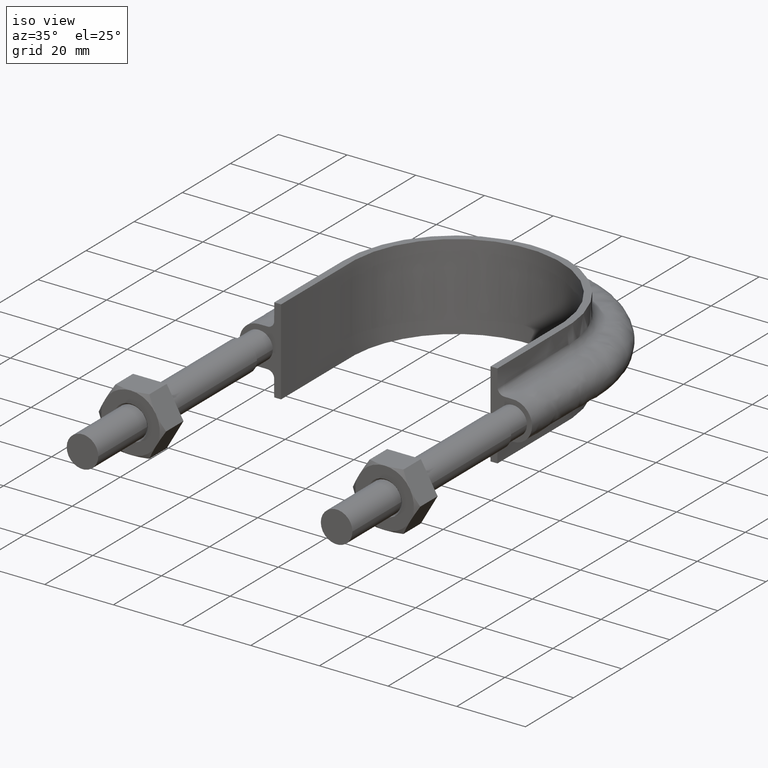
[diagram: clean part render]
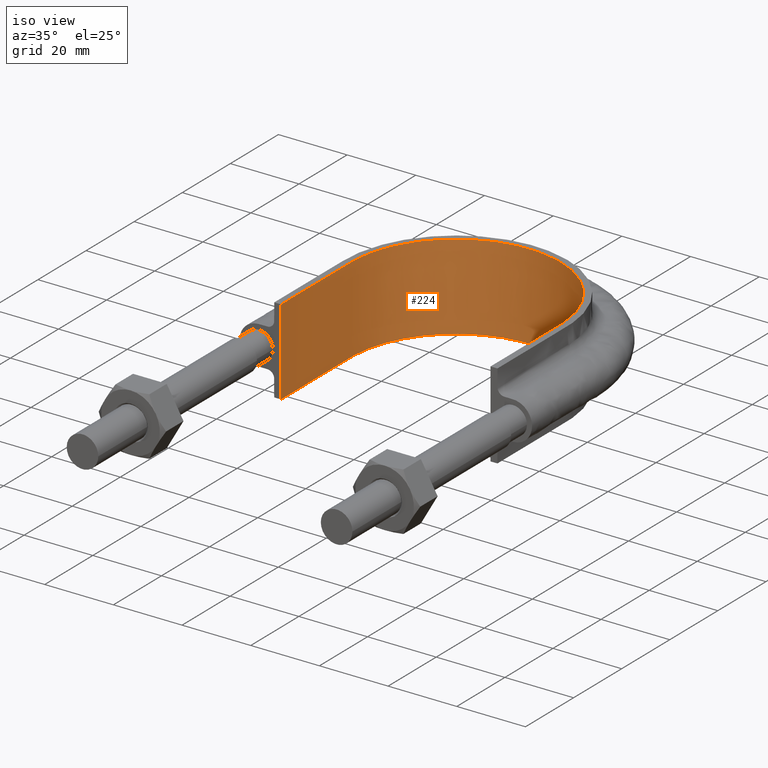
[diagram: tour spotlight — one face highlighted and labeled with its STEP entity id]
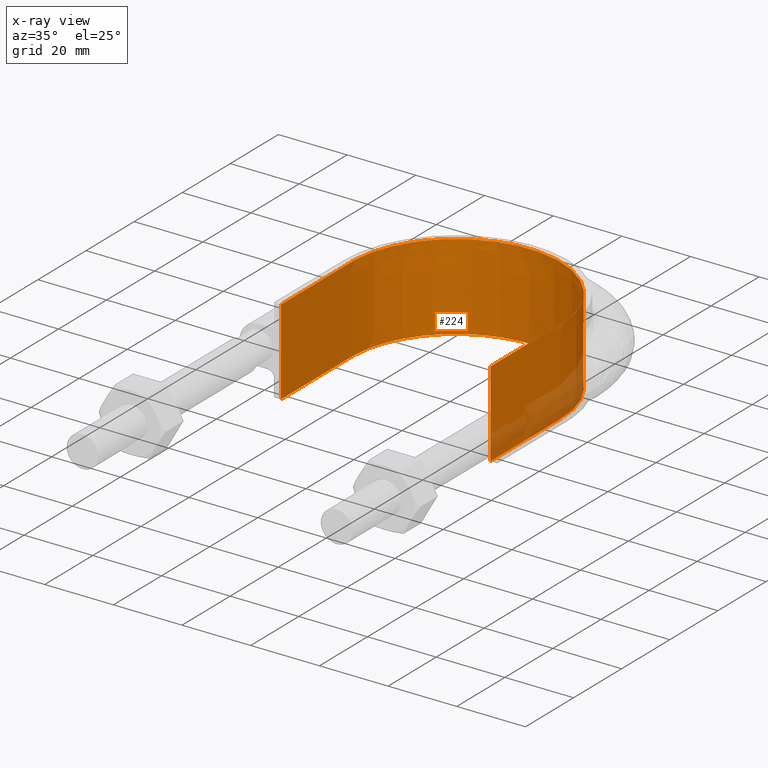
[diagram: x-ray of the same camera — body ghosted, this tour face saturated]
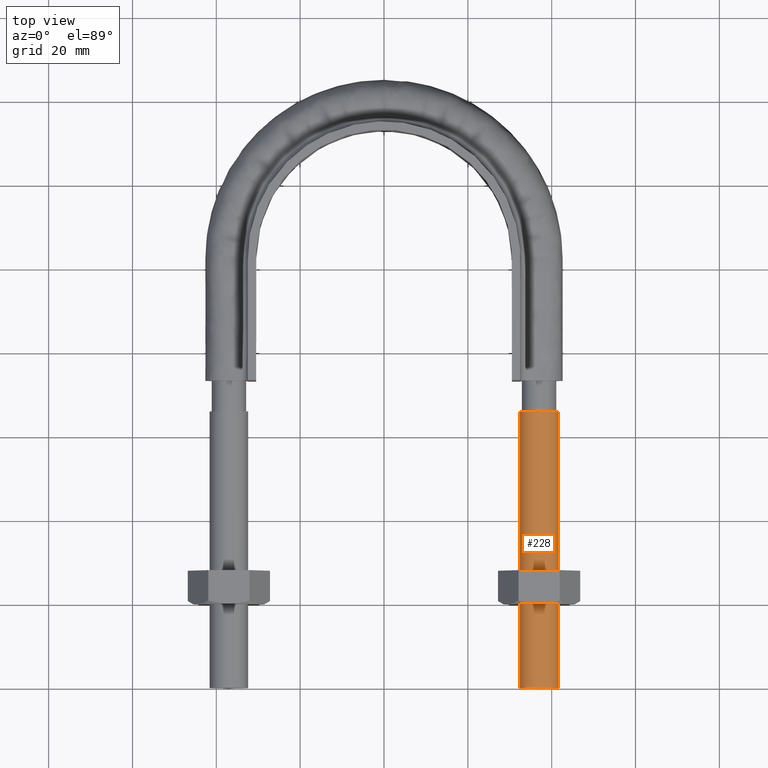
[diagram: tour spotlight — one face highlighted and labeled with its STEP entity id]
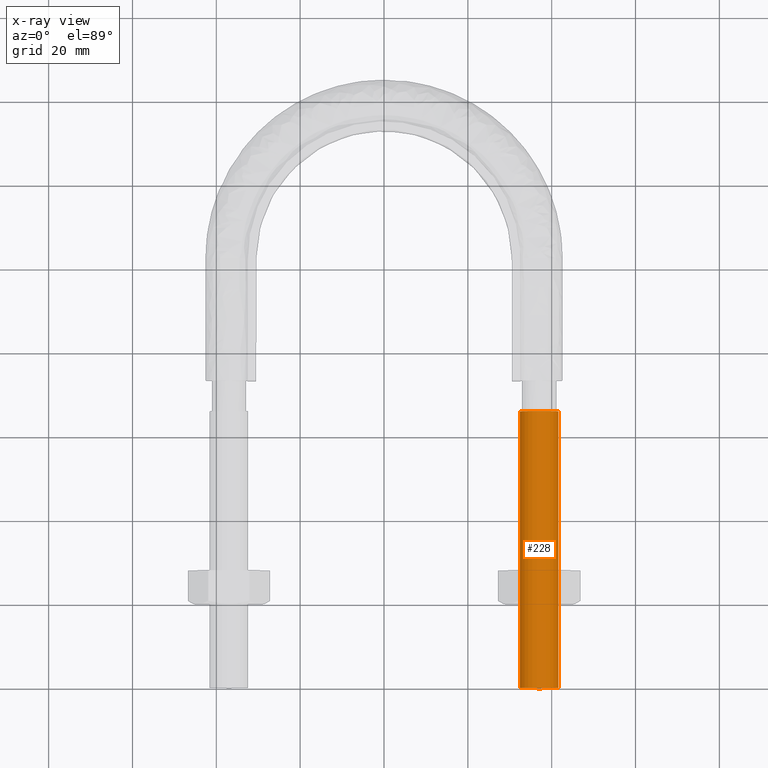
[diagram: x-ray of the same camera — body ghosted, this tour face saturated]
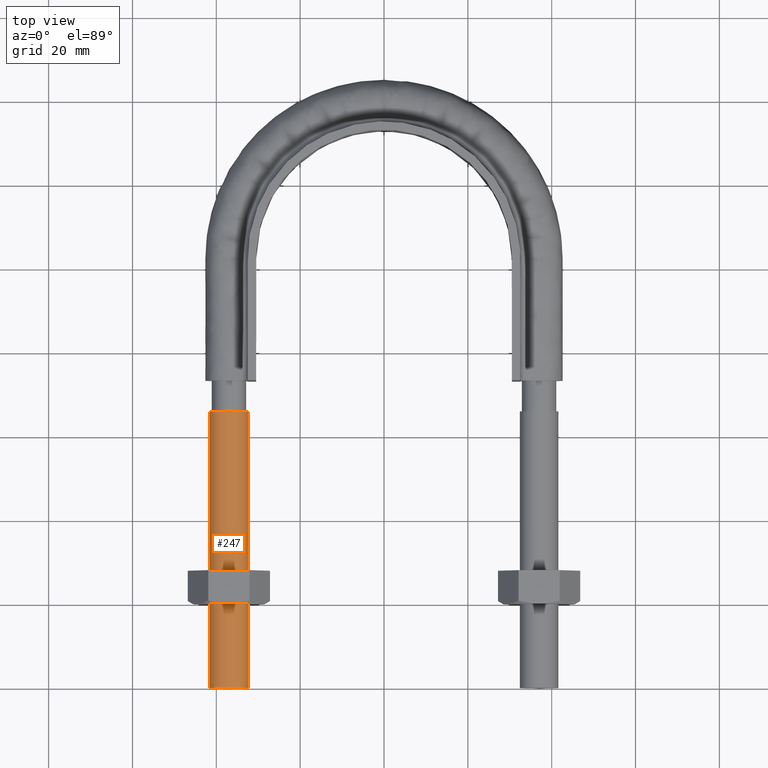
[diagram: tour spotlight — one face highlighted and labeled with its STEP entity id]
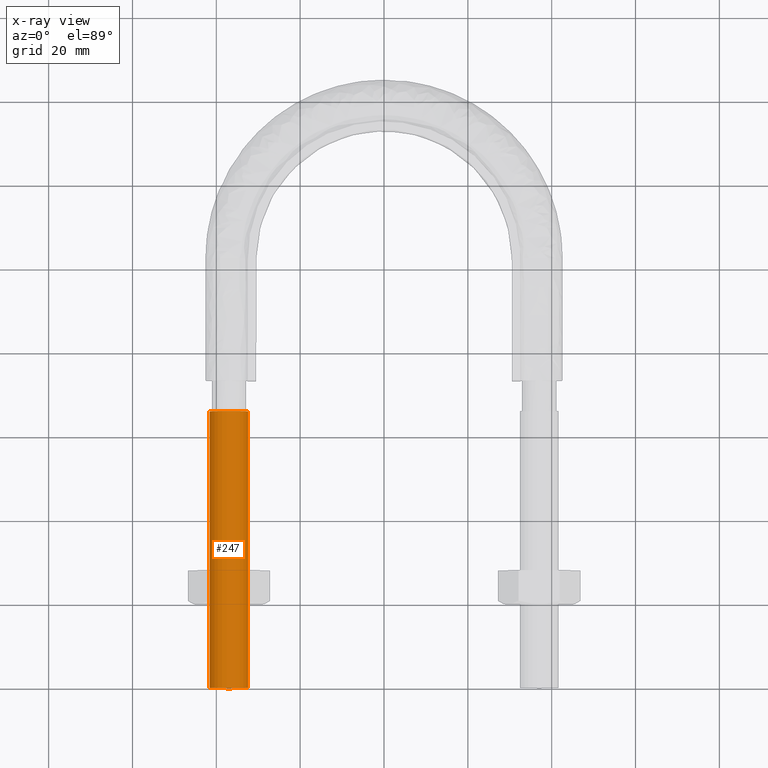
[diagram: x-ray of the same camera — body ghosted, this tour face saturated]
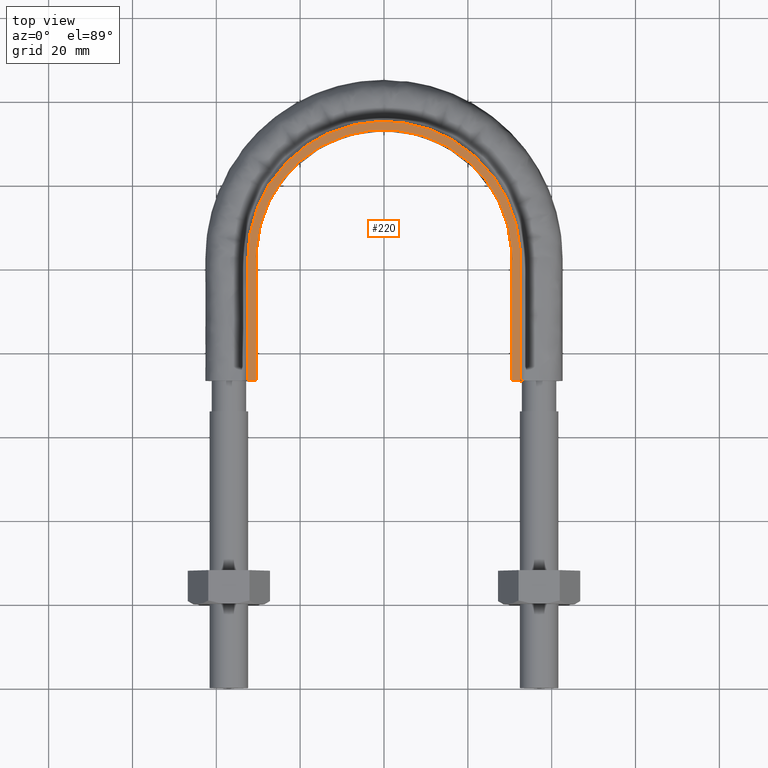
[diagram: tour spotlight — one face highlighted and labeled with its STEP entity id]
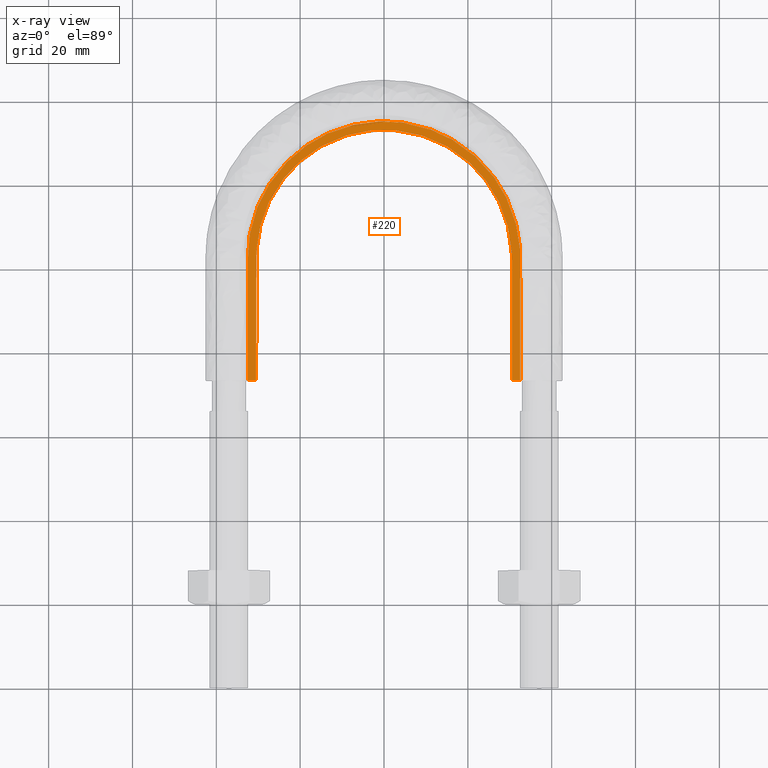
[diagram: x-ray of the same camera — body ghosted, this tour face saturated]
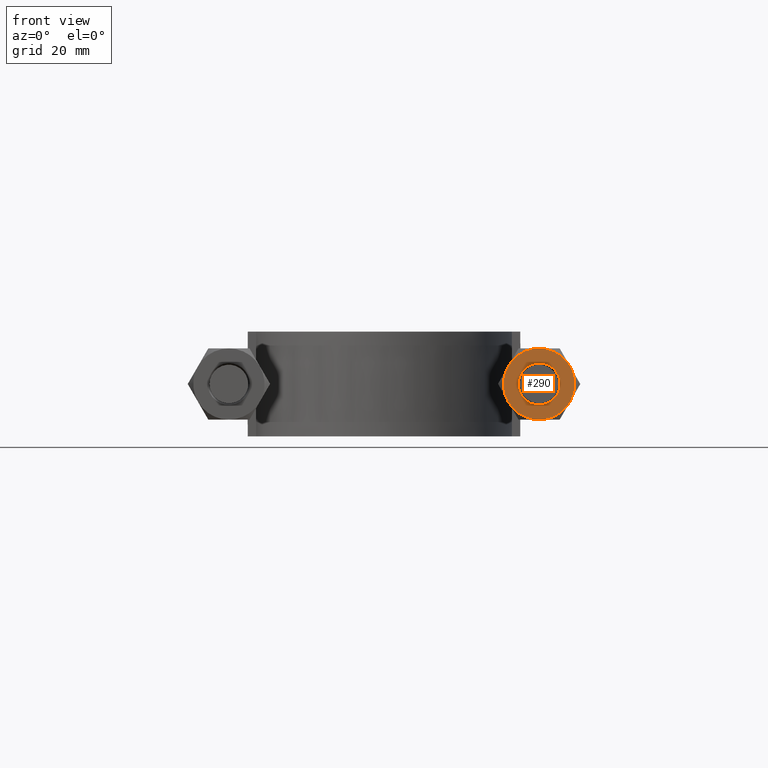
[diagram: tour spotlight — one face highlighted and labeled with its STEP entity id]
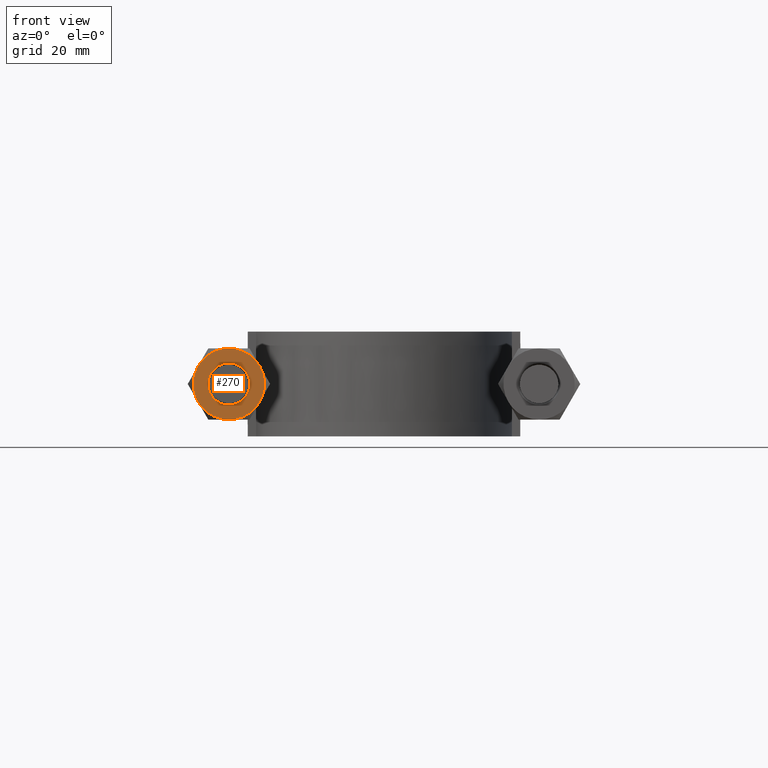
[diagram: tour spotlight — one face highlighted and labeled with its STEP entity id]
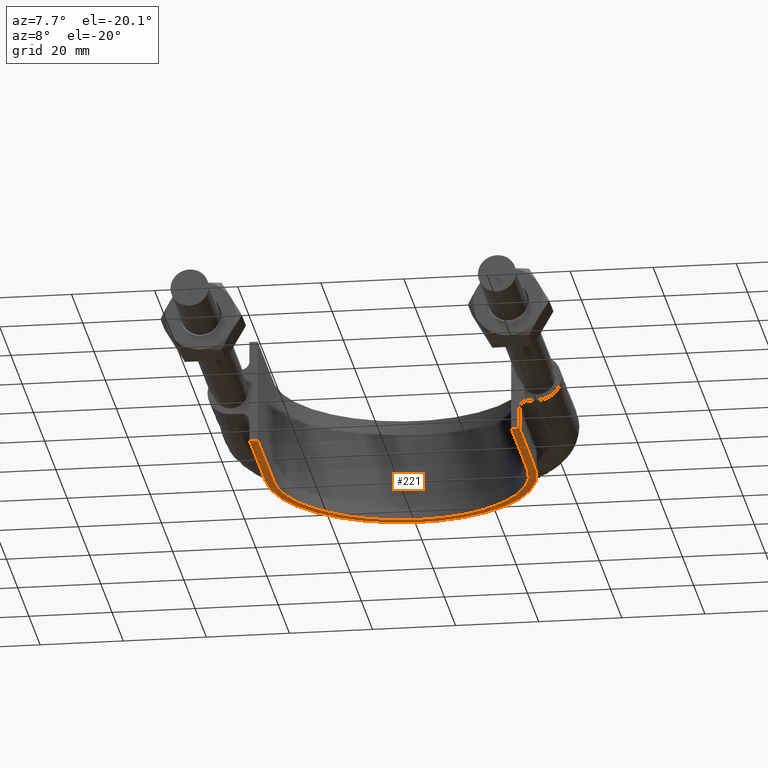
[diagram: tour spotlight — one face highlighted and labeled with its STEP entity id]
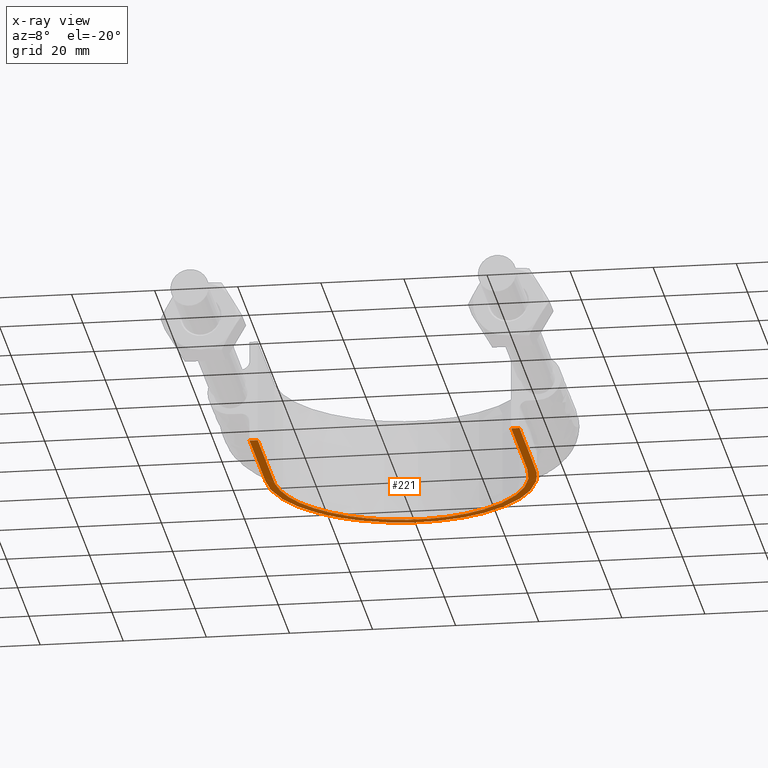
[diagram: x-ray of the same camera — body ghosted, this tour face saturated]
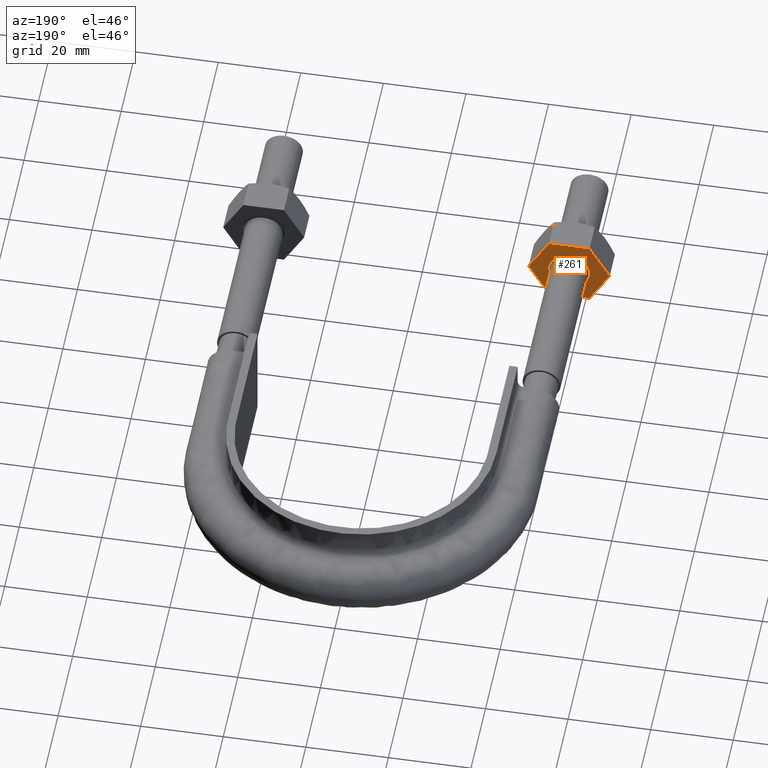
[diagram: tour spotlight — one face highlighted and labeled with its STEP entity id]
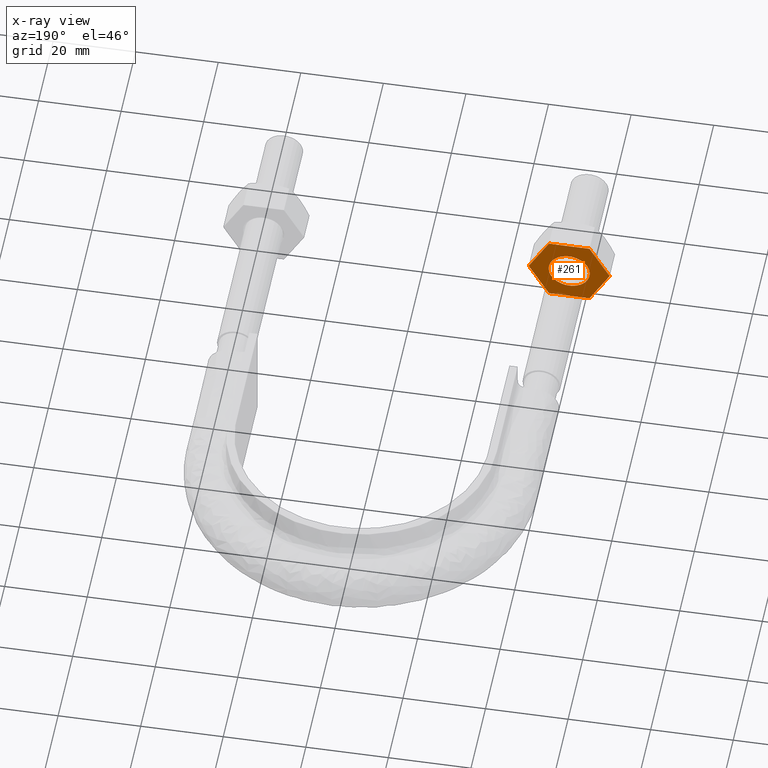
[diagram: x-ray of the same camera — body ghosted, this tour face saturated]
A machine part: a face-by-face anatomy tour. The part has 76 B-rep faces; the first image is the clean iso view, then the 8 largest visible faces are spotlighted one at a time (largest first), each with its STEP entity span.

Face 1 — iso view, entity #224. An x-ray twin of the same camera follows (body ghosted, this face saturated) — the face is partly hidden behind the body. In plain terms, the highlighted face is a SurfaceOfExtrusion surface.
Definition (entity closure, byte-faithful):
#224 = ADVANCED_FACE( '', ( #308 ), #309, .T. );
#308 = FACE_OUTER_BOUND( '', #1006, .T. );
#309 = SURFACE_OF_LINEAR_EXTRUSION( '', #1007, #1008 );
#1006 = EDGE_LOOP( '', ( #1499, #1500, #1501, #1502 ) );
#1007 = B_SPLINE_CURVE_WITH_KNOTS( '', 3, ( #1503, #1504, #1505, #1506, #1507, #1508, #1509, #1510, #1511, #1512, #1513, #1514, #1515, #1516, #1517, #1518, #1519 ), .UNSPECIFIED., .F., .F., ( 4, 3, 1, 1, 1, 1, 1, 1, 1, 3, 4 ), ( -7.88217522658610, -7.00000000000000, -6.50000000000000, -6.00000000000000, -5.00000000000000, -4.00000000000000, -3.00000000000000, -2.00000000000000, -1.50000000000000, -1.00000000000000, -0.117824773413899 ), .UNSPECIFIED. );
#1008 = VECTOR( '', #1520, 1000.00000000000 );
#1499 = ORIENTED_EDGE( '', *, *, #2011, .T. );
#1500 = ORIENTED_EDGE( '', *, *, #2004, .F. );
#1501 = ORIENTED_EDGE( '', *, *, #2009, .F. );
#1502 = ORIENTED_EDGE( '', *, *, #2014, .T. );
#1503 = CARTESIAN_POINT( '', ( 30.5000000000000, 73.3000000000001, 12.5000100000910 ) );
#1504 = CARTESIAN_POINT( '', ( 30.5000000000000, 83.0333333333334, 12.5000100000910 ) );
#1505 = CARTESIAN_POINT( '', ( 30.5000000000000, 92.7666666666667, 12.5000100000910 ) );
#1506 = CARTESIAN_POINT( '', ( 30.5000000000001, 102.500000000000, 12.5000100000910 ) );
#1507 = CARTESIAN_POINT( '', ( 30.5000000000001, 105.146909574859, 12.5000100000910 ) );
#1508 = CARTESIAN_POINT( '', ( 29.7847488998591, 110.486937441059, 12.5000100000910 ) );
#1509 = CARTESIAN_POINT( '', ( 25.7022707691493, 120.407294151929, 12.5000100000910 ) );
#1510 = CARTESIAN_POINT( '', ( 15.9624408097424, 130.149665427345, 12.5000100000910 ) );
#1511 = CARTESIAN_POINT( '', ( 2.68701322531081E-014, 134.425167286328, 12.5000100000910 ) );
#1512 = CARTESIAN_POINT( '', ( -15.9624408097423, 130.149665427345, 12.5000100000910 ) );
#1513 = CARTESIAN_POINT( '', ( -25.7022707691492, 120.407294151929, 12.5000100000910 ) );
#1514 = CARTESIAN_POINT( '', ( -29.7847488998590, 110.486937441059, 12.5000100000910 ) );
#1515 = CARTESIAN_POINT( '', ( -30.5000000000000, 105.146909574859, 12.5000100000910 ) );
#1516 = CARTESIAN_POINT( '', ( -30.5000000000000, 102.500000000000, 12.5000100000910 ) );
#1517 = CARTESIAN_POINT( '', ( -30.5000000000000, 92.7666666666667, 12.5000100000910 ) );
#1518 = CARTESIAN_POINT( '', ( -30.5000000000000, 83.0333333333334, 12.5000100000910 ) );
#1519 = CARTESIAN_POINT( '', ( -30.5000000000000, 73.3000000000001, 12.5000100000910 ) );
#1520 = DIRECTION( '', ( 0.000000000000000, 0.000000000000000, -1.00000000000000 ) );
#2004 = EDGE_CURVE( '', #2155, #2158, #2159, .T. );
#2009 = EDGE_CURVE( '', #2166, #2155, #2168, .T. );
#2011 = EDGE_CURVE( '', #2170, #2158, #2171, .F. );
#2014 = EDGE_CURVE( '', #2166, #2170, #2175, .T. );
#2155 = VERTEX_POINT( '', #2405 );
#2158 = VERTEX_POINT( '', #2409 );
#2159 = LINE( '', #2410, #2411 );
#2166 = VERTEX_POINT( '', #2458 );
#2168 = B_SPLINE_CURVE_WITH_KNOTS( '', 3, ( #2461, #2462, #2463, #2464, #2465, #2466, #2467, #2468, #2469, #2470, #2471, #2472, #2473, #2474, #2475, #2476, #2477, #2478, #2479, #2480, #2481, #2482, #2483, #2484, #2485, #2486, #2487, #2488, #2489, #2490, #2491, #2492, #2493, #2494, #2495, #2496, #2497, #2498, #2499, #2500, #2501, #2502, #2503, #2504, #2505, #2506, #2507, #2508, #2509, #2510, #2511, #2512, #2513, #2514, #2515, #2516, #2517, #2518, #2519, #2520, #2521, #2522, #2523, #2524, #2525, #2526, #2527, #2528, #2529, #2530, #2531, #2532, #2533, #2534 ), .UNSPECIFIED., .F., .F., ( 4, 1, 2, 2, 2, 2, 2, 2, 2, 2, 2, 2, 2, 2, 2, 2, 2, 2, 2, 2, 2, 2, 2, 2, 2, 2, 2, 2, 2, 2, 2, 2, 2, 2, 2, 2, 1, 4 ), ( 0.000000000000000, 0.0192554222640497, 0.0288831333960746, 0.0300865972875777, 0.0312900611790808, 0.0336969889620870, 0.0385108445280995, 0.0433247000941120, 0.0445281639856152, 0.0457316278771183, 0.0481385556601245, 0.0529524112261371, 0.0553593390091433, 0.0577662667921496, 0.0625801223581622, 0.0649870501411685, 0.0673939779241748, 0.0722078334901873, 0.0746147612731936, 0.0770216890561999, 0.0818355446222125, 0.0842424724052188, 0.0866494001882251, 0.0914632557542377, 0.0938701835372440, 0.0962771113202503, 0.101090966886263, 0.103497894669269, 0.105904822452275, 0.110718678018288, 0.115532533584301, 0.117939461367307, 0.120346389150313, 0.122753316933320, 0.123956780824823, 0.125160244716326, 0.134787955848351, 0.154043378112401 ), .UNSPECIFIED. );
#2170 = VERTEX_POINT( '', #2552 );
#2171 = B_SPLINE_CURVE_WITH_KNOTS( '', 3, ( #2553, #2554, #2555, #2556, #2557, #2558, #2559, #2560, #2561, #2562, #2563, #2564, #2565, #2566, #2567, #2568, #2569 ), .UNSPECIFIED., .F., .F., ( 4, 3, 1, 1, 1, 1, 1, 1, 1, 3, 4 ), ( -7.88217522658610, -7.00000000000000, -6.50000000000000, -6.00000000000000, -5.00000000000000, -4.00000000000000, -3.00000000000000, -2.00000000000000, -1.50000000000000, -1.00000000000000, -0.117824773413899 ), .UNSPECIFIED. );
#2175 = LINE( '', #2590, #2591 );
#2405 = CARTESIAN_POINT( '', ( 30.5000000000000, 73.3000000000001, 12.5000000000000 ) );
#2409 = CARTESIAN_POINT( '', ( 30.5000000000000, 73.3000000000001, -12.5000000000000 ) );
#2410 = CARTESIAN_POINT( '', ( 30.5000000000000, 73.3000000000001, 12.5000100000910 ) );
#2411 = VECTOR( '', #3059, 1000.00000000000 );
#2458 = CARTESIAN_POINT( '', ( -30.5000000000000, 73.3000000000001, 12.5000000000000 ) );
#2461 = CARTESIAN_POINT( '', ( -30.5000000000000, 73.3000000000001, 12.5000000000000 ) );
#2462 = CARTESIAN_POINT( '', ( -30.5000000000000, 79.7187970838913, 12.5000000000000 ) );
#2463 = CARTESIAN_POINT( '', ( -30.5000000000000, 89.3469927097281, 12.5000000000000 ) );
#2464 = CARTESIAN_POINT( '', ( -30.5000000000000, 98.9751883355649, 12.5000000000000 ) );
#2465 = CARTESIAN_POINT( '', ( -30.5000000000000, 102.585761695254, 12.5000000000000 ) );
#2466 = CARTESIAN_POINT( '', ( -30.4986844541323, 102.986923314969, 12.5000000000000 ) );
#2467 = CARTESIAN_POINT( '', ( -30.4745981741132, 103.789031308254, 12.5000000000000 ) );
#2468 = CARTESIAN_POINT( '', ( -30.4544492509141, 104.190003984771, 12.5000000000000 ) );
#2469 = CARTESIAN_POINT( '', ( -30.3699321862256, 105.392680532489, 12.5000000000000 ) );
#2470 = CARTESIAN_POINT( '', ( -30.2815513452004, 106.194196915207, 12.5000000000000 ) );
#2471 = CARTESIAN_POINT( '', ( -29.9199873207873, 108.597457571638, 12.5000000000000 ) );
#2472 = CARTESIAN_POINT( '', ( -29.5571198360745, 110.159787861722, 12.5000000000000 ) );
#2473 = CARTESIAN_POINT( '', ( -28.5972722047829, 113.207880590115, 12.5000000000000 ) );
#2474 = CARTESIAN_POINT( '', ( -28.0002144656635, 114.693617651351, 12.5000000000000 ) );
#2475 = CARTESIAN_POINT( '', ( -27.0992764629767, 116.500221008755, 12.5000000000000 ) );
#2476 = CARTESIAN_POINT( '', ( -26.9108830168220, 116.859704838131, 12.5000000000000 ) );
#2477 = CARTESIAN_POINT( '', ( -26.5213882779156, 117.567587786141, 12.5000000000000 ) );
#2478 = CARTESIAN_POINT( '', ( -26.3200606712639, 117.916474396834, 12.5000000000000 ) );
#2479 = CARTESIAN_POINT( '', ( -25.6966622493176, 118.948219384474, 12.5000000000000 ) );
#2480 = CARTESIAN_POINT( '', ( -25.2552822010553, 119.616244628455, 12.5000000000000 ) );
#2481 = CARTESIAN_POINT( '', ( -23.8563980365694, 121.562902855286, 12.5000000000000 ) );
#2482 = CARTESIAN_POINT( '', ( -22.8247599514250, 122.784586967088, 12.5000000000000 ) );
#2483 = CARTESIAN_POINT( '', ( -21.1277356912023, 124.502217366142, 12.5000000000000 ) );
#2484 = CARTESIAN_POINT( '', ( -20.5344294178501, 125.057480363821, 12.5000000000000 ) );
#2485 = CARTESIAN_POINT( '', ( -19.3154400053685, 126.111482848479, 12.5000000000000 ) );
#2486 = CARTESIAN_POINT( '', ( -18.6885192790513, 126.611839840476, 12.5000000000000 ) );
#2487 = CARTESIAN_POINT( '', ( -16.7561230155804, 128.033962699371, 12.5000000000000 ) );
#2488 = CARTESIAN_POINT( '', ( -15.3990725127794, 128.876870841469, 12.5000000000000 ) );
#2489 = CARTESIAN_POINT( '', ( -13.2570671195093, 129.978502957120, 12.5000000000000 ) );
#2490 = CARTESIAN_POINT( '', ( -12.5228230069798, 130.319814017707, 12.5000000000000 ) );
#2491 = CARTESIAN_POINT( '', ( -11.0306240768060, 130.942412499717, 12.5000000000000 ) );
#2492 = CARTESIAN_POINT( '', ( -10.2767436568867, 131.222274993299, 12.5000000000000 ) );
#2493 = CARTESIAN_POINT( '', ( -7.99256638845166, 131.970812104532, 12.5000000000000 ) );
#2494 = CARTESIAN_POINT( '', ( -6.43991564048131, 132.349172113476, 12.5000000000000 ) );
#2495 = CARTESIAN_POINT( '', ( -4.06589188416628, 132.734709900453, 12.5000000000000 ) );
#2496 = CARTESIAN_POINT( '', ( -3.26699737472984, 132.832705696047, 12.5000000000000 ) );
#2497 = CARTESIAN_POINT( '', ( -1.65347310558416, 132.965123458688, 12.5000000000000 ) );
#2498 = CARTESIAN_POINT( '', ( -0.846703494355733, 132.998768451046, 12.5000000000000 ) );
#2499 = CARTESIAN_POINT( '', ( 1.55984817231918, 133.002363337310, 12.5000000000000 ) );
#2500 = CARTESIAN_POINT( '', ( 3.15187678310376, 132.876183128002, 12.5000000000000 ) );
#2501 = CARTESIAN_POINT( '', ( 5.52210746155246, 132.501305428157, 12.5000000000000 ) );
#2502 = CARTESIAN_POINT( '', ( 6.30919715953047, 132.345218975853, 12.5000000000000 ) );
#2503 = CARTESIAN_POINT( '', ( 7.87729381106992, 131.969662553274, 12.5000000000000 ) );
#2504 = CARTESIAN_POINT( '', ( 8.65917048563720, 131.749575242181, 12.5000000000000 ) );
#2505 = CARTESIAN_POINT( '', ( 10.9545464152788, 131.005259840030, 12.5000000000000 ) );
#2506 = CARTESIAN_POINT( '', ( 12.4320231471581, 130.394841390723, 12.5000000000000 ) );
#2507 = CARTESIAN_POINT( '', ( 14.5688395440172, 129.307386671407, 12.5000000000000 ) );
#2508 = CARTESIAN_POINT( '', ( 15.2677563263257, 128.915999398825, 12.5000000000000 ) );
#2509 = CARTESIAN_POINT( '', ( 16.6381409078520, 128.073822399900, 12.5000000000000 ) );
#2510 = CARTESIAN_POINT( '', ( 17.3125759005461, 127.620964775786, 12.5000000000000 ) );
#2511 = CARTESIAN_POINT( '', ( 19.2664798661708, 126.192854811404, 12.5000000000000 ) );
#2512 = CARTESIAN_POINT( '', ( 20.4798446876839, 125.148667712286, 12.5000000000000 ) );
#2513 = CARTESIAN_POINT( '', ( 22.1715309172385, 123.449889227024, 12.5000000000000 ) );
#2514 = CARTESIAN_POINT( '', ( 22.7138929749291, 122.861402400307, 12.5000000000000 ) );
#2515 = CARTESIAN_POINT( '', ( 23.7548102890672, 121.639210134757, 12.5000000000000 ) );
#2516 = CARTESIAN_POINT( '', ( 24.2544864579076, 121.003952520684, 12.5000000000000 ) );
#2517 = CARTESIAN_POINT( '', ( 25.6776288297832, 119.037581170348, 12.5000000000000 ) );
#2518 = CARTESIAN_POINT( '', ( 26.5096219006963, 117.668392928187, 12.5000000000000 ) );
#2519 = CARTESIAN_POINT( '', ( 27.9456565910456, 114.816255937661, 12.5000000000000 ) );
#2520 = CARTESIAN_POINT( '', ( 28.5509590265554, 113.333936406938, 12.5000000000000 ) );
#2521 = CARTESIAN_POINT( '', ( 29.2876344042200, 111.024979684816, 12.5000000000000 ) );
#2522 = CARTESIAN_POINT( '', ( 29.5032356740682, 110.243977307862, 12.5000000000000 ) );
#2523 = CARTESIAN_POINT( '', ( 29.8703294719088, 108.679738122459, 12.5000000000000 ) );
#2524 = CARTESIAN_POINT( '', ( 30.0228181117526, 107.893587442054, 12.5000000000000 ) );
#2525 = CARTESIAN_POINT( '', ( 30.2663038414341, 106.313305021184, 12.5000000000000 ) );
#2526 = CARTESIAN_POINT( '', ( 30.3573018810972, 105.519173403997, 12.5000000000000 ) );
#2527 = CARTESIAN_POINT( '', ( 30.4466313783281, 104.321854045247, 12.5000000000000 ) );
#2528 = CARTESIAN_POINT( '', ( 30.4685308150342, 103.921725219210, 12.5000000000000 ) );
#2529 = CARTESIAN_POINT( '', ( 30.4961990804468, 103.119373956692, 12.5000000000000 ) );
#2530 = CARTESIAN_POINT( '', ( 30.5000000000001, 102.716896102985, 12.5000000000000 ) );
#2531 = CARTESIAN_POINT( '', ( 30.5000000000001, 99.0901554875488, 12.5000000000000 ) );
#2532 = CARTESIAN_POINT( '', ( 30.5000000000000, 89.4188471797180, 12.5000000000000 ) );
#2533 = CARTESIAN_POINT( '', ( 30.5000000000000, 79.7475388718872, 12.5000000000000 ) );
#2534 = CARTESIAN_POINT( '', ( 30.5000000000000, 73.3000000000001, 12.5000000000000 ) );
#2552 = CARTESIAN_POINT( '', ( -30.5000000000000, 73.3000000000001, -12.5000000000000 ) );
#2553 = CARTESIAN_POINT( '', ( 30.5000000000000, 73.3000000000001, -12.5000000000000 ) );
#2554 = CARTESIAN_POINT( '', ( 30.5000000000000, 83.0333333333334, -12.5000000000000 ) );
#2555 = CARTESIAN_POINT( '', ( 30.5000000000000, 92.7666666666667, -12.5000000000000 ) );
#2556 = CARTESIAN_POINT( '', ( 30.5000000000001, 102.500000000000, -12.5000000000000 ) );
#2557 = CARTESIAN_POINT( '', ( 30.5000000000001, 105.146909574859, -12.5000000000000 ) );
#2558 = CARTESIAN_POINT( '', ( 29.7847488998591, 110.486937441059, -12.5000000000000 ) );
#2559 = CARTESIAN_POINT( '', ( 25.7022707691493, 120.407294151929, -12.5000000000000 ) );
#2560 = CARTESIAN_POINT( '', ( 15.9624408097424, 130.149665427345, -12.5000000000000 ) );
#2561 = CARTESIAN_POINT( '', ( 2.68701322531081E-014, 134.425167286328, -12.5000000000000 ) );
#2562 = CARTESIAN_POINT( '', ( -15.9624408097423, 130.149665427345, -12.5000000000000 ) );
#2563 = CARTESIAN_POINT( '', ( -25.7022707691492, 120.407294151929, -12.5000000000000 ) );
#2564 = CARTESIAN_POINT( '', ( -29.7847488998590, 110.486937441059, -12.5000000000000 ) );
#2565 = CARTESIAN_POINT( '', ( -30.5000000000000, 105.146909574859, -12.5000000000000 ) );
#2566 = CARTESIAN_POINT( '', ( -30.5000000000000, 102.500000000000, -12.5000000000000 ) );
#2567 = CARTESIAN_POINT( '', ( -30.5000000000000, 92.7666666666667, -12.5000000000000 ) );
#2568 = CARTESIAN_POINT( '', ( -30.5000000000000, 83.0333333333334, -12.5000000000000 ) );
#2569 = CARTESIAN_POINT( '', ( -30.5000000000000, 73.3000000000001, -12.5000000000000 ) );
#2590 = CARTESIAN_POINT( '', ( -30.5000000000000, 73.3000000000001, 12.5000100000910 ) );
#2591 = VECTOR( '', #3063, 1000.00000000000 );
#3059 = DIRECTION( '', ( 0.000000000000000, 0.000000000000000, -1.00000000000000 ) );
#3063 = DIRECTION( '', ( 0.000000000000000, 0.000000000000000, -1.00000000000000 ) );

Face 2 — top view, entity #228. An x-ray twin of the same camera follows (body ghosted, this face saturated) — the face is partly hidden behind the body. In plain terms, the highlighted cylindrical surface (bore or boss wall) has radius 4.6 mm, axis along (0, 1, -0).
Definition (entity closure, byte-faithful):
#228 = ADVANCED_FACE( '', ( #318, #319 ), #320, .T. );
#318 = FACE_OUTER_BOUND( '', #1166, .T. );
#319 = FACE_OUTER_BOUND( '', #1167, .T. );
#320 = CYLINDRICAL_SURFACE( '', #1168, 4.60000000000000 );
#1166 = EDGE_LOOP( '', ( #1539 ) );
#1167 = EDGE_LOOP( '', ( #1540 ) );
#1168 = AXIS2_PLACEMENT_3D( '', #1541, #1542, #1543 );
#1539 = ORIENTED_EDGE( '', *, *, #2027, .T. );
#1540 = ORIENTED_EDGE( '', *, *, #2028, .F. );
#1541 = CARTESIAN_POINT( '', ( 37.0000000000000, 66.0000000000000, -4.07793915822852E-015 ) );
#1542 = DIRECTION( '', ( 2.44921270764475E-016, 1.00000000000000, -6.12303176911189E-017 ) );
#1543 = DIRECTION( '', ( 1.00000000000000, -2.44921270764475E-016, 0.000000000000000 ) );
#2027 = EDGE_CURVE( '', #2199, #2199, #2200, .T. );
#2028 = EDGE_CURVE( '', #2201, #2201, #2202, .T. );
#2199 = VERTEX_POINT( '', #2657 );
#2200 = CIRCLE( '', #2658, 4.60000000000000 );
#2201 = VERTEX_POINT( '', #2659 );
#2202 = CIRCLE( '', #2660, 4.60000000000000 );
#2657 = CARTESIAN_POINT( '', ( 41.6000000000000, 66.0000000000000, -4.07793915822852E-015 ) );
#2658 = AXIS2_PLACEMENT_3D( '', #3091, #3092, #3093 );
#2659 = CARTESIAN_POINT( '', ( 41.6000000000000, -1.01887248638022E-014, -3.67381906146710E-017 ) );
#2660 = AXIS2_PLACEMENT_3D( '', #3094, #3095, #3096 );
#3091 = CARTESIAN_POINT( '', ( 37.0000000000000, 66.0000000000000, -4.07793915822852E-015 ) );
#3092 = DIRECTION( '', ( -2.44921270764476E-016, -1.00000000000000, 6.12303176911189E-017 ) );
#3093 = DIRECTION( '', ( 1.00000000000000, -2.44921270764476E-016, 1.02543741170147E-047 ) );
#3094 = CARTESIAN_POINT( '', ( 37.0000000000000, -9.06208701828559E-015, -3.67381906146710E-017 ) );
#3095 = DIRECTION( '', ( -2.44921270764476E-016, -1.00000000000000, 6.12303176911189E-017 ) );
#3096 = DIRECTION( '', ( 1.00000000000000, -2.44921270764476E-016, 1.02543741170147E-047 ) );

Face 3 — top view, entity #247. An x-ray twin of the same camera follows (body ghosted, this face saturated) — the face is partly hidden behind the body. In plain terms, the highlighted cylindrical surface (bore or boss wall) has radius 4.6 mm, axis along (0, 1, -0).
Definition (entity closure, byte-faithful):
#247 = ADVANCED_FACE( '', ( #361, #362 ), #363, .T. );
#361 = FACE_OUTER_BOUND( '', #1358, .T. );
#362 = FACE_OUTER_BOUND( '', #1359, .T. );
#363 = CYLINDRICAL_SURFACE( '', #1360, 4.60000000000000 );
#1358 = EDGE_LOOP( '', ( #1647 ) );
#1359 = EDGE_LOOP( '', ( #1648 ) );
#1360 = AXIS2_PLACEMENT_3D( '', #1649, #1650, #1651 );
#1647 = ORIENTED_EDGE( '', *, *, #2050, .T. );
#1648 = ORIENTED_EDGE( '', *, *, #2049, .F. );
#1649 = CARTESIAN_POINT( '', ( -37.0000000000000, 66.0000000000000, -4.07793915822852E-015 ) );
#1650 = DIRECTION( '', ( 2.44921270764475E-016, 1.00000000000000, -6.12303176911189E-017 ) );
#1651 = DIRECTION( '', ( 1.00000000000000, -2.44921270764475E-016, 0.000000000000000 ) );
#2049 = EDGE_CURVE( '', #2229, #2229, #2230, .T. );
#2050 = EDGE_CURVE( '', #2231, #2231, #2232, .T. );
#2229 = VERTEX_POINT( '', #2726 );
#2230 = CIRCLE( '', #2727, 4.60000000000000 );
#2231 = VERTEX_POINT( '', #2728 );
#2232 = CIRCLE( '', #2729, 4.60000000000000 );
#2726 = CARTESIAN_POINT( '', ( -32.4000000000000, 7.93544917276900E-015, -3.67381906146716E-017 ) );
#2727 = AXIS2_PLACEMENT_3D( '', #3118, #3119, #3120 );
#2728 = CARTESIAN_POINT( '', ( -32.4000000000000, 66.0000000000000, -4.07793915822852E-015 ) );
#2729 = AXIS2_PLACEMENT_3D( '', #3121, #3122, #3123 );
#3118 = CARTESIAN_POINT( '', ( -37.0000000000000, 9.06208701828559E-015, -3.67381906146716E-017 ) );
#3119 = DIRECTION( '', ( -2.44921270764475E-016, -1.00000000000000, 6.12303176911189E-017 ) );
#3120 = DIRECTION( '', ( 1.00000000000000, -2.44921270764475E-016, 0.000000000000000 ) );
#3121 = CARTESIAN_POINT( '', ( -37.0000000000000, 66.0000000000000, -4.07793915822852E-015 ) );
#3122 = DIRECTION( '', ( -2.44921270764475E-016, -1.00000000000000, 6.12303176911189E-017 ) );
#3123 = DIRECTION( '', ( 1.00000000000000, -2.44921270764475E-016, 0.000000000000000 ) );

Face 4 — top view, entity #220. An x-ray twin of the same camera follows (body ghosted, this face saturated) — the face is partly hidden behind the body. In plain terms, the highlighted planar face has unit normal (0, 0, 1).
Definition (entity closure, byte-faithful):
#220 = ADVANCED_FACE( '', ( #299 ), #300, .T. );
#299 = FACE_OUTER_BOUND( '', #471, .T. );
#300 = PLANE( '', #472 );
#471 = EDGE_LOOP( '', ( #1473, #1474, #1475, #1476 ) );
#472 = AXIS2_PLACEMENT_3D( '', #1477, #1478, #1479 );
#1473 = ORIENTED_EDGE( '', *, *, #2008, .T. );
#1474 = ORIENTED_EDGE( '', *, *, #2009, .T. );
#1475 = ORIENTED_EDGE( '', *, *, #2003, .T. );
#1476 = ORIENTED_EDGE( '', *, *, #2010, .F. );
#1477 = CARTESIAN_POINT( '', ( 45.0000000000000, 153.300000000000, 12.5000000000000 ) );
#1478 = DIRECTION( '', ( 0.000000000000000, 0.000000000000000, 1.00000000000000 ) );
#1479 = DIRECTION( '', ( 1.00000000000000, 0.000000000000000, 0.000000000000000 ) );
#2003 = EDGE_CURVE( '', #2155, #2156, #2157, .T. );
#2008 = EDGE_CURVE( '', #2165, #2166, #2167, .T. );
#2009 = EDGE_CURVE( '', #2166, #2155, #2168, .T. );
#2010 = EDGE_CURVE( '', #2165, #2156, #2169, .T. );
#2155 = VERTEX_POINT( '', #2405 );
#2156 = VERTEX_POINT( '', #2406 );
#2157 = LINE( '', #2407, #2408 );
#2165 = VERTEX_POINT( '', #2457 );
#2166 = VERTEX_POINT( '', #2458 );
#2167 = LINE( '', #2459, #2460 );
#2168 = B_SPLINE_CURVE_WITH_KNOTS( '', 3, ( #2461, #2462, #2463, #2464, #2465, #2466, #2467, #2468, #2469, #2470, #2471, #2472, #2473, #2474, #2475, #2476, #2477, #2478, #2479, #2480, #2481, #2482, #2483, #2484, #2485, #2486, #2487, #2488, #2489, #2490, #2491, #2492, #2493, #2494, #2495, #2496, #2497, #2498, #2499, #2500, #2501, #2502, #2503, #2504, #2505, #2506, #2507, #2508, #2509, #2510, #2511, #2512, #2513, #2514, #2515, #2516, #2517, #2518, #2519, #2520, #2521, #2522, #2523, #2524, #2525, #2526, #2527, #2528, #2529, #2530, #2531, #2532, #2533, #2534 ), .UNSPECIFIED., .F., .F., ( 4, 1, 2, 2, 2, 2, 2, 2, 2, 2, 2, 2, 2, 2, 2, 2, 2, 2, 2, 2, 2, 2, 2, 2, 2, 2, 2, 2, 2, 2, 2, 2, 2, 2, 2, 2, 1, 4 ), ( 0.000000000000000, 0.0192554222640497, 0.0288831333960746, 0.0300865972875777, 0.0312900611790808, 0.0336969889620870, 0.0385108445280995, 0.0433247000941120, 0.0445281639856152, 0.0457316278771183, 0.0481385556601245, 0.0529524112261371, 0.0553593390091433, 0.0577662667921496, 0.0625801223581622, 0.0649870501411685, 0.0673939779241748, 0.0722078334901873, 0.0746147612731936, 0.0770216890561999, 0.0818355446222125, 0.0842424724052188, 0.0866494001882251, 0.0914632557542377, 0.0938701835372440, 0.0962771113202503, 0.101090966886263, 0.103497894669269, 0.105904822452275, 0.110718678018288, 0.115532533584301, 0.117939461367307, 0.120346389150313, 0.122753316933320, 0.123956780824823, 0.125160244716326, 0.134787955848351, 0.154043378112401 ), .UNSPECIFIED. );
#2169 = B_SPLINE_CURVE_WITH_KNOTS( '', 3, ( #2535, #2536, #2537, #2538, #2539, #2540, #2541, #2542, #2543, #2544, #2545, #2546, #2547, #2548, #2549, #2550, #2551 ), .UNSPECIFIED., .F., .F., ( 4, 3, 1, 1, 1, 1, 1, 1, 1, 3, 4 ), ( 0.117824773413900, 1.00000000000000, 1.50000000000000, 2.00000000000000, 3.00000000000000, 4.00000000000000, 5.00000000000000, 6.00000000000000, 6.50000000000000, 7.00000000000000, 7.88217522658610 ), .UNSPECIFIED. );
#2405 = CARTESIAN_POINT( '', ( 30.5000000000000, 73.3000000000001, 12.5000000000000 ) );
#2406 = CARTESIAN_POINT( '', ( 32.5000000000000, 73.3000000000001, 12.5000000000000 ) );
#2407 = CARTESIAN_POINT( '', ( 45.0000000000000, 73.3000000000001, 12.5000000000000 ) );
#2408 = VECTOR( '', #3058, 1000.00000000000 );
#2457 = CARTESIAN_POINT( '', ( -32.5000000000000, 73.3000000000001, 12.5000000000000 ) );
#2458 = CARTESIAN_POINT( '', ( -30.5000000000000, 73.3000000000001, 12.5000000000000 ) );
#2459 = CARTESIAN_POINT( '', ( 45.0000000000000, 73.3000000000001, 12.5000000000000 ) );
#2460 = VECTOR( '', #3061, 1000.00000000000 );
#2461 = CARTESIAN_POINT( '', ( -30.5000000000000, 73.3000000000001, 12.5000000000000 ) );
#2462 = CARTESIAN_POINT( '', ( -30.5000000000000, 79.7187970838913, 12.5000000000000 ) );
#2463 = CARTESIAN_POINT( '', ( -30.5000000000000, 89.3469927097281, 12.5000000000000 ) );
#2464 = CARTESIAN_POINT( '', ( -30.5000000000000, 98.9751883355649, 12.5000000000000 ) );
#2465 = CARTESIAN_POINT( '', ( -30.5000000000000, 102.585761695254, 12.5000000000000 ) );
#2466 = CARTESIAN_POINT( '', ( -30.4986844541323, 102.986923314969, 12.5000000000000 ) );
#2467 = CARTESIAN_POINT( '', ( -30.4745981741132, 103.789031308254, 12.5000000000000 ) );
#2468 = CARTESIAN_POINT( '', ( -30.4544492509141, 104.190003984771, 12.5000000000000 ) );
#2469 = CARTESIAN_POINT( '', ( -30.3699321862256, 105.392680532489, 12.5000000000000 ) );
#2470 = CARTESIAN_POINT( '', ( -30.2815513452004, 106.194196915207, 12.5000000000000 ) );
#2471 = CARTESIAN_POINT( '', ( -29.9199873207873, 108.597457571638, 12.5000000000000 ) );
#2472 = CARTESIAN_POINT( '', ( -29.5571198360745, 110.159787861722, 12.5000000000000 ) );
#2473 = CARTESIAN_POINT( '', ( -28.5972722047829, 113.207880590115, 12.5000000000000 ) );
#2474 = CARTESIAN_POINT( '', ( -28.0002144656635, 114.693617651351, 12.5000000000000 ) );
#2475 = CARTESIAN_POINT( '', ( -27.0992764629767, 116.500221008755, 12.5000000000000 ) );
#2476 = CARTESIAN_POINT( '', ( -26.9108830168220, 116.859704838131, 12.5000000000000 ) );
#2477 = CARTESIAN_POINT( '', ( -26.5213882779156, 117.567587786141, 12.5000000000000 ) );
#2478 = CARTESIAN_POINT( '', ( -26.3200606712639, 117.916474396834, 12.5000000000000 ) );
#2479 = CARTESIAN_POINT( '', ( -25.6966622493176, 118.948219384474, 12.5000000000000 ) );
#2480 = CARTESIAN_POINT( '', ( -25.2552822010553, 119.616244628455, 12.5000000000000 ) );
#2481 = CARTESIAN_POINT( '', ( -23.8563980365694, 121.562902855286, 12.5000000000000 ) );
#2482 = CARTESIAN_POINT( '', ( -22.8247599514250, 122.784586967088, 12.5000000000000 ) );
#2483 = CARTESIAN_POINT( '', ( -21.1277356912023, 124.502217366142, 12.5000000000000 ) );
#2484 = CARTESIAN_POINT( '', ( -20.5344294178501, 125.057480363821, 12.5000000000000 ) );
#2485 = CARTESIAN_POINT( '', ( -19.3154400053685, 126.111482848479, 12.5000000000000 ) );
#2486 = CARTESIAN_POINT( '', ( -18.6885192790513, 126.611839840476, 12.5000000000000 ) );
#2487 = CARTESIAN_POINT( '', ( -16.7561230155804, 128.033962699371, 12.5000000000000 ) );
#2488 = CARTESIAN_POINT( '', ( -15.3990725127794, 128.876870841469, 12.5000000000000 ) );
#2489 = CARTESIAN_POINT( '', ( -13.2570671195093, 129.978502957120, 12.5000000000000 ) );
#2490 = CARTESIAN_POINT( '', ( -12.5228230069798, 130.319814017707, 12.5000000000000 ) );
#2491 = CARTESIAN_POINT( '', ( -11.0306240768060, 130.942412499717, 12.5000000000000 ) );
#2492 = CARTESIAN_POINT( '', ( -10.2767436568867, 131.222274993299, 12.5000000000000 ) );
#2493 = CARTESIAN_POINT( '', ( -7.99256638845166, 131.970812104532, 12.5000000000000 ) );
#2494 = CARTESIAN_POINT( '', ( -6.43991564048131, 132.349172113476, 12.5000000000000 ) );
#2495 = CARTESIAN_POINT( '', ( -4.06589188416628, 132.734709900453, 12.5000000000000 ) );
#2496 = CARTESIAN_POINT( '', ( -3.26699737472984, 132.832705696047, 12.5000000000000 ) );
#2497 = CARTESIAN_POINT( '', ( -1.65347310558416, 132.965123458688, 12.5000000000000 ) );
#2498 = CARTESIAN_POINT( '', ( -0.846703494355733, 132.998768451046, 12.5000000000000 ) );
#2499 = CARTESIAN_POINT( '', ( 1.55984817231918, 133.002363337310, 12.5000000000000 ) );
#2500 = CARTESIAN_POINT( '', ( 3.15187678310376, 132.876183128002, 12.5000000000000 ) );
#2501 = CARTESIAN_POINT( '', ( 5.52210746155246, 132.501305428157, 12.5000000000000 ) );
#2502 = CARTESIAN_POINT( '', ( 6.30919715953047, 132.345218975853, 12.5000000000000 ) );
#2503 = CARTESIAN_POINT( '', ( 7.87729381106992, 131.969662553274, 12.5000000000000 ) );
#2504 = CARTESIAN_POINT( '', ( 8.65917048563720, 131.749575242181, 12.5000000000000 ) );
#2505 = CARTESIAN_POINT( '', ( 10.9545464152788, 131.005259840030, 12.5000000000000 ) );
#2506 = CARTESIAN_POINT( '', ( 12.4320231471581, 130.394841390723, 12.5000000000000 ) );
#2507 = CARTESIAN_POINT( '', ( 14.5688395440172, 129.307386671407, 12.5000000000000 ) );
#2508 = CARTESIAN_POINT( '', ( 15.2677563263257, 128.915999398825, 12.5000000000000 ) );
#2509 = CARTESIAN_POINT( '', ( 16.6381409078520, 128.073822399900, 12.5000000000000 ) );
#2510 = CARTESIAN_POINT( '', ( 17.3125759005461, 127.620964775786, 12.5000000000000 ) );
#2511 = CARTESIAN_POINT( '', ( 19.2664798661708, 126.192854811404, 12.5000000000000 ) );
#2512 = CARTESIAN_POINT( '', ( 20.4798446876839, 125.148667712286, 12.5000000000000 ) );
#2513 = CARTESIAN_POINT( '', ( 22.1715309172385, 123.449889227024, 12.5000000000000 ) );
#2514 = CARTESIAN_POINT( '', ( 22.7138929749291, 122.861402400307, 12.5000000000000 ) );
#2515 = CARTESIAN_POINT( '', ( 23.7548102890672, 121.639210134757, 12.5000000000000 ) );
#2516 = CARTESIAN_POINT( '', ( 24.2544864579076, 121.003952520684, 12.5000000000000 ) );
#2517 = CARTESIAN_POINT( '', ( 25.6776288297832, 119.037581170348, 12.5000000000000 ) );
#2518 = CARTESIAN_POINT( '', ( 26.5096219006963, 117.668392928187, 12.5000000000000 ) );
#2519 = CARTESIAN_POINT( '', ( 27.9456565910456, 114.816255937661, 12.5000000000000 ) );
#2520 = CARTESIAN_POINT( '', ( 28.5509590265554, 113.333936406938, 12.5000000000000 ) );
#2521 = CARTESIAN_POINT( '', ( 29.2876344042200, 111.024979684816, 12.5000000000000 ) );
#2522 = CARTESIAN_POINT( '', ( 29.5032356740682, 110.243977307862, 12.5000000000000 ) );
#2523 = CARTESIAN_POINT( '', ( 29.8703294719088, 108.679738122459, 12.5000000000000 ) );
#2524 = CARTESIAN_POINT( '', ( 30.0228181117526, 107.893587442054, 12.5000000000000 ) );
#2525 = CARTESIAN_POINT( '', ( 30.2663038414341, 106.313305021184, 12.5000000000000 ) );
#2526 = CARTESIAN_POINT( '', ( 30.3573018810972, 105.519173403997, 12.5000000000000 ) );
#2527 = CARTESIAN_POINT( '', ( 30.4466313783281, 104.321854045247, 12.5000000000000 ) );
#2528 = CARTESIAN_POINT( '', ( 30.4685308150342, 103.921725219210, 12.5000000000000 ) );
#2529 = CARTESIAN_POINT( '', ( 30.4961990804468, 103.119373956692, 12.5000000000000 ) );
#2530 = CARTESIAN_POINT( '', ( 30.5000000000001, 102.716896102985, 12.5000000000000 ) );
#2531 = CARTESIAN_POINT( '', ( 30.5000000000001, 99.0901554875488, 12.5000000000000 ) );
#2532 = CARTESIAN_POINT( '', ( 30.5000000000000, 89.4188471797180, 12.5000000000000 ) );
#2533 = CARTESIAN_POINT( '', ( 30.5000000000000, 79.7475388718872, 12.5000000000000 ) );
#2534 = CARTESIAN_POINT( '', ( 30.5000000000000, 73.3000000000001, 12.5000000000000 ) );
#2535 = CARTESIAN_POINT( '', ( -32.5000000000000, 73.3000000000001, 12.5000000000000 ) );
#2536 = CARTESIAN_POINT( '', ( -32.5000000000000, 83.0333333333334, 12.5000000000000 ) );
#2537 = CARTESIAN_POINT( '', ( -32.5000000000000, 92.7666666666667, 12.5000000000000 ) );
#2538 = CARTESIAN_POINT( '', ( -32.5000000000000, 102.500000000000, 12.5000000000000 ) );
#2539 = CARTESIAN_POINT( '', ( -32.5000000000000, 105.325542369813, 12.5000000000000 ) );
#2540 = CARTESIAN_POINT( '', ( -31.7387347919768, 111.008617759312, 12.5000000000000 ) );
#2541 = CARTESIAN_POINT( '', ( -27.3871545291852, 121.582731692400, 12.5000000000000 ) );
#2542 = CARTESIAN_POINT( '', ( -17.0093196223625, 131.962325971844, 12.5000000000000 ) );
#2543 = CARTESIAN_POINT( '', ( 3.23306948061794E-014, 136.518837014078, 12.5000000000000 ) );
#2544 = CARTESIAN_POINT( '', ( 17.0093196223626, 131.962325971844, 12.5000000000000 ) );
#2545 = CARTESIAN_POINT( '', ( 27.3871545291853, 121.582731692400, 12.5000000000000 ) );
#2546 = CARTESIAN_POINT( '', ( 31.7387347919769, 111.008617759312, 12.5000000000000 ) );
#2547 = CARTESIAN_POINT( '', ( 32.5000000000000, 105.325542369813, 12.5000000000000 ) );
#2548 = CARTESIAN_POINT( '', ( 32.5000000000000, 102.500000000000, 12.5000000000000 ) );
#2549 = CARTESIAN_POINT( '', ( 32.5000000000000, 92.7666666666667, 12.5000000000000 ) );
#2550 = CARTESIAN_POINT( '', ( 32.5000000000000, 83.0333333333334, 12.5000000000000 ) );
#2551 = CARTESIAN_POINT( '', ( 32.5000000000000, 73.3000000000001, 12.5000000000000 ) );
#3058 = DIRECTION( '', ( 1.00000000000000, -1.22460635382238E-016, 0.000000000000000 ) );
#3061 = DIRECTION( '', ( 1.00000000000000, -1.22460635382238E-016, 0.000000000000000 ) );

Face 5 — front view, entity #290. In plain terms, the highlighted planar face has unit normal (0, 1, -0).
Definition (entity closure, byte-faithful):
#290 = ADVANCED_FACE( '', ( #455, #456 ), #457, .F. );
#455 = FACE_OUTER_BOUND( '', #1452, .T. );
#456 = FACE_BOUND( '', #1453, .T. );
#457 = PLANE( '', #1454 );
#1452 = EDGE_LOOP( '', ( #1968, #1969, #1970, #1971, #1972, #1973 ) );
#1453 = EDGE_LOOP( '', ( #1974 ) );
#1454 = AXIS2_PLACEMENT_3D( '', #1975, #1976, #1977 );
#1968 = ORIENTED_EDGE( '', *, *, #2142, .F. );
#1969 = ORIENTED_EDGE( '', *, *, #2119, .F. );
#1970 = ORIENTED_EDGE( '', *, *, #2127, .F. );
#1971 = ORIENTED_EDGE( '', *, *, #2140, .F. );
#1972 = ORIENTED_EDGE( '', *, *, #2105, .F. );
#1973 = ORIENTED_EDGE( '', *, *, #2121, .F. );
#1974 = ORIENTED_EDGE( '', *, *, #2153, .T. );
#1975 = CARTESIAN_POINT( '', ( 37.0000000000000, 19.9999999999964, -6.22440467223928E-016 ) );
#1976 = DIRECTION( '', ( 9.18247024260622E-049, 1.00000000000000, -6.12303176911188E-017 ) );
#1977 = DIRECTION( '', ( 1.00000000000000, 0.000000000000000, 1.49966072182214E-032 ) );
#2105 = EDGE_CURVE( '', #2322, #2324, #2325, .T. );
#2119 = EDGE_CURVE( '', #2350, #2335, #2351, .T. );
#2121 = EDGE_CURVE( '', #2353, #2322, #2354, .T. );
#2127 = EDGE_CURVE( '', #2364, #2350, #2365, .T. );
#2140 = EDGE_CURVE( '', #2324, #2364, #2385, .T. );
#2142 = EDGE_CURVE( '', #2335, #2353, #2387, .T. );
#2153 = EDGE_CURVE( '', #2401, #2401, #2402, .T. );
#2322 = VERTEX_POINT( '', #2897 );
#2324 = VERTEX_POINT( '', #2904 );
#2325 = CIRCLE( '', #2905, 8.50000000000000 );
#2335 = VERTEX_POINT( '', #2922 );
#2350 = VERTEX_POINT( '', #2951 );
#2351 = CIRCLE( '', #2952, 8.50000000000000 );
#2353 = VERTEX_POINT( '', #2959 );
#2354 = CIRCLE( '', #2960, 8.50000000000000 );
#2364 = VERTEX_POINT( '', #2980 );
#2365 = CIRCLE( '', #2981, 8.50000000000000 );
#2385 = CIRCLE( '', #3027, 8.50000000000000 );
#2387 = CIRCLE( '', #3034, 8.50000000000000 );
#2401 = VERTEX_POINT( '', #3054 );
#2402 = CIRCLE( '', #3055, 5.00000000000000 );
#2897 = CARTESIAN_POINT( '', ( 44.3612159321661, 19.9999999999964, 4.25000000000289 ) );
#2904 = CARTESIAN_POINT( '', ( 44.3612159321694, 19.9999999999964, -4.24999999999709 ) );
#2905 = AXIS2_PLACEMENT_3D( '', #3211, #3212, #3213 );
#2922 = CARTESIAN_POINT( '', ( 29.6387840678306, 19.9999999999964, 4.24999999999709 ) );
#2951 = CARTESIAN_POINT( '', ( 29.6387840678339, 19.9999999999964, -4.25000000000289 ) );
#2952 = AXIS2_PLACEMENT_3D( '', #3232, #3233, #3234 );
#2959 = CARTESIAN_POINT( '', ( 36.9999999999967, 19.9999999999964, 8.50000000000000 ) );
#2960 = AXIS2_PLACEMENT_3D( '', #3235, #3236, #3237 );
#2980 = CARTESIAN_POINT( '', ( 37.0000000000017, 19.9999999999958, -8.49999999999904 ) );
#2981 = AXIS2_PLACEMENT_3D( '', #3247, #3248, #3249 );
#3027 = AXIS2_PLACEMENT_3D( '', #3262, #3263, #3264 );
#3034 = AXIS2_PLACEMENT_3D( '', #3265, #3266, #3267 );
#3054 = CARTESIAN_POINT( '', ( 37.0000000000000, 19.9999999999964, 5.00000000000000 ) );
#3055 = AXIS2_PLACEMENT_3D( '', #3286, #3287, #3288 );
#3211 = CARTESIAN_POINT( '', ( 37.0000000000000, 19.9999999999964, -6.22440467223928E-016 ) );
#3212 = DIRECTION( '', ( 9.18247024260622E-049, 1.00000000000000, -6.12303176911188E-017 ) );
#3213 = DIRECTION( '', ( 0.000000000000000, 6.12303176911188E-017, 1.00000000000000 ) );
#3232 = CARTESIAN_POINT( '', ( 37.0000000000000, 19.9999999999964, -6.22440467223928E-016 ) );
#3233 = DIRECTION( '', ( 9.18247024260622E-049, 1.00000000000000, -6.12303176911188E-017 ) );
#3234 = DIRECTION( '', ( 0.000000000000000, 6.12303176911188E-017, 1.00000000000000 ) );
#3235 = CARTESIAN_POINT( '', ( 37.0000000000000, 19.9999999999964, -6.22440467223928E-016 ) );
#3236 = DIRECTION( '', ( 9.18247024260622E-049, 1.00000000000000, -6.12303176911188E-017 ) );
#3237 = DIRECTION( '', ( 0.000000000000000, 6.12303176911188E-017, 1.00000000000000 ) );
#3247 = CARTESIAN_POINT( '', ( 37.0000000000000, 19.9999999999964, -6.22440467223928E-016 ) );
#3248 = DIRECTION( '', ( 9.18247024260622E-049, 1.00000000000000, -6.12303176911188E-017 ) );
#3249 = DIRECTION( '', ( 0.000000000000000, 6.12303176911188E-017, 1.00000000000000 ) );
#3262 = CARTESIAN_POINT( '', ( 37.0000000000000, 19.9999999999964, -6.22440467223928E-016 ) );
#3263 = DIRECTION( '', ( 9.18247024260622E-049, 1.00000000000000, -6.12303176911188E-017 ) );
#3264 = DIRECTION( '', ( 0.000000000000000, 6.12303176911188E-017, 1.00000000000000 ) );
#3265 = CARTESIAN_POINT( '', ( 37.0000000000000, 19.9999999999964, -6.22440467223928E-016 ) );
#3266 = DIRECTION( '', ( 9.18247024260622E-049, 1.00000000000000, -6.12303176911188E-017 ) );
#3267 = DIRECTION( '', ( 0.000000000000000, 6.12303176911188E-017, 1.00000000000000 ) );
#3286 = CARTESIAN_POINT( '', ( 37.0000000000000, 19.9999999999964, -6.22440467223928E-016 ) );
#3287 = DIRECTION( '', ( 9.18247024260622E-049, 1.00000000000000, -6.12303176911188E-017 ) );
#3288 = DIRECTION( '', ( 0.000000000000000, 6.12303176911188E-017, 1.00000000000000 ) );

Face 6 — front view, entity #270. In plain terms, the highlighted planar face has unit normal (0, 1, -0).
Definition (entity closure, byte-faithful):
#270 = ADVANCED_FACE( '', ( #412, #413 ), #414, .F. );
#412 = FACE_OUTER_BOUND( '', #1409, .T. );
#413 = FACE_BOUND( '', #1410, .T. );
#414 = PLANE( '', #1411 );
#1409 = EDGE_LOOP( '', ( #1812, #1813, #1814, #1815, #1816, #1817 ) );
#1410 = EDGE_LOOP( '', ( #1818 ) );
#1411 = AXIS2_PLACEMENT_3D( '', #1819, #1820, #1821 );
#1812 = ORIENTED_EDGE( '', *, *, #2094, .F. );
#1813 = ORIENTED_EDGE( '', *, *, #2063, .F. );
#1814 = ORIENTED_EDGE( '', *, *, #2098, .F. );
#1815 = ORIENTED_EDGE( '', *, *, #2086, .F. );
#1816 = ORIENTED_EDGE( '', *, *, #2053, .F. );
#1817 = ORIENTED_EDGE( '', *, *, #2100, .F. );
#1818 = ORIENTED_EDGE( '', *, *, #2082, .T. );
#1819 = CARTESIAN_POINT( '', ( -37.0000000000000, 19.9999999999964, -6.22440467223928E-016 ) );
#1820 = DIRECTION( '', ( 9.18247024260622E-049, 1.00000000000000, -6.12303176911188E-017 ) );
#1821 = DIRECTION( '', ( 1.00000000000000, 0.000000000000000, 1.49966072182214E-032 ) );
#2053 = EDGE_CURVE( '', #2236, #2238, #2239, .T. );
#2063 = EDGE_CURVE( '', #2257, #2258, #2259, .T. );
#2082 = EDGE_CURVE( '', #2290, #2290, #2291, .T. );
#2086 = EDGE_CURVE( '', #2238, #2297, #2298, .T. );
#2094 = EDGE_CURVE( '', #2258, #2283, #2309, .T. );
#2098 = EDGE_CURVE( '', #2297, #2257, #2314, .T. );
#2100 = EDGE_CURVE( '', #2283, #2236, #2316, .T. );
#2236 = VERTEX_POINT( '', #2733 );
#2238 = VERTEX_POINT( '', #2740 );
#2239 = CIRCLE( '', #2741, 8.50000000000000 );
#2257 = VERTEX_POINT( '', #2768 );
#2258 = VERTEX_POINT( '', #2769 );
#2259 = CIRCLE( '', #2770, 8.50000000000000 );
#2283 = VERTEX_POINT( '', #2820 );
#2290 = VERTEX_POINT( '', #2839 );
#2291 = CIRCLE( '', #2840, 5.00000000000000 );
#2297 = VERTEX_POINT( '', #2847 );
#2298 = CIRCLE( '', #2848, 8.50000000000000 );
#2309 = CIRCLE( '', #2867, 8.50000000000000 );
#2314 = CIRCLE( '', #2878, 8.50000000000000 );
#2316 = CIRCLE( '', #2885, 8.50000000000000 );
#2733 = CARTESIAN_POINT( '', ( -29.6387840678339, 19.9999999999964, 4.25000000000289 ) );
#2740 = CARTESIAN_POINT( '', ( -29.6387840678306, 19.9999999999964, -4.24999999999709 ) );
#2741 = AXIS2_PLACEMENT_3D( '', #3127, #3128, #3129 );
#2768 = CARTESIAN_POINT( '', ( -44.3612159321661, 19.9999999999964, -4.25000000000289 ) );
#2769 = CARTESIAN_POINT( '', ( -44.3612159321694, 19.9999999999964, 4.24999999999709 ) );
#2770 = AXIS2_PLACEMENT_3D( '', #3146, #3147, #3148 );
#2820 = CARTESIAN_POINT( '', ( -37.0000000000033, 19.9999999999964, 8.50000000000000 ) );
#2839 = CARTESIAN_POINT( '', ( -37.0000000000000, 19.9999999999964, 5.00000000000000 ) );
#2840 = AXIS2_PLACEMENT_3D( '', #3169, #3170, #3171 );
#2847 = CARTESIAN_POINT( '', ( -36.9999999999983, 19.9999999999958, -8.49999999999904 ) );
#2848 = AXIS2_PLACEMENT_3D( '', #3179, #3180, #3181 );
#2867 = AXIS2_PLACEMENT_3D( '', #3194, #3195, #3196 );
#2878 = AXIS2_PLACEMENT_3D( '', #3201, #3202, #3203 );
#2885 = AXIS2_PLACEMENT_3D( '', #3204, #3205, #3206 );
#3127 = CARTESIAN_POINT( '', ( -37.0000000000000, 19.9999999999964, -6.22440467223928E-016 ) );
#3128 = DIRECTION( '', ( 9.18247024260622E-049, 1.00000000000000, -6.12303176911188E-017 ) );
#3129 = DIRECTION( '', ( 0.000000000000000, 6.12303176911188E-017, 1.00000000000000 ) );
#3146 = CARTESIAN_POINT( '', ( -37.0000000000000, 19.9999999999964, -6.22440467223928E-016 ) );
#3147 = DIRECTION( '', ( 9.18247024260622E-049, 1.00000000000000, -6.12303176911188E-017 ) );
#3148 = DIRECTION( '', ( 0.000000000000000, 6.12303176911188E-017, 1.00000000000000 ) );
#3169 = CARTESIAN_POINT( '', ( -37.0000000000000, 19.9999999999964, -6.22440467223928E-016 ) );
#3170 = DIRECTION( '', ( 9.18247024260622E-049, 1.00000000000000, -6.12303176911188E-017 ) );
#3171 = DIRECTION( '', ( 0.000000000000000, 6.12303176911188E-017, 1.00000000000000 ) );
#3179 = CARTESIAN_POINT( '', ( -37.0000000000000, 19.9999999999964, -6.22440467223928E-016 ) );
#3180 = DIRECTION( '', ( 9.18247024260622E-049, 1.00000000000000, -6.12303176911188E-017 ) );
#3181 = DIRECTION( '', ( 0.000000000000000, 6.12303176911188E-017, 1.00000000000000 ) );
#3194 = CARTESIAN_POINT( '', ( -37.0000000000000, 19.9999999999964, -6.22440467223928E-016 ) );
#3195 = DIRECTION( '', ( 9.18247024260622E-049, 1.00000000000000, -6.12303176911188E-017 ) );
#3196 = DIRECTION( '', ( 0.000000000000000, 6.12303176911188E-017, 1.00000000000000 ) );
#3201 = CARTESIAN_POINT( '', ( -37.0000000000000, 19.9999999999964, -6.22440467223928E-016 ) );
#3202 = DIRECTION( '', ( 9.18247024260622E-049, 1.00000000000000, -6.12303176911188E-017 ) );
#3203 = DIRECTION( '', ( 0.000000000000000, 6.12303176911188E-017, 1.00000000000000 ) );
#3204 = CARTESIAN_POINT( '', ( -37.0000000000000, 19.9999999999964, -6.22440467223928E-016 ) );
#3205 = DIRECTION( '', ( 9.18247024260622E-049, 1.00000000000000, -6.12303176911188E-017 ) );
#3206 = DIRECTION( '', ( 0.000000000000000, 6.12303176911188E-017, 1.00000000000000 ) );

Face 7 — auxiliary view, entity #221. An x-ray twin of the same camera follows (body ghosted, this face saturated) — the face is partly hidden behind the body. In plain terms, the highlighted planar face has unit normal (0, 0, 1).
Definition (entity closure, byte-faithful):
#221 = ADVANCED_FACE( '', ( #301 ), #302, .F. );
#301 = FACE_OUTER_BOUND( '', #473, .T. );
#302 = PLANE( '', #474 );
#473 = EDGE_LOOP( '', ( #1480, #1481, #1482, #1483 ) );
#474 = AXIS2_PLACEMENT_3D( '', #1484, #1485, #1486 );
#1480 = ORIENTED_EDGE( '', *, *, #2011, .F. );
#1481 = ORIENTED_EDGE( '', *, *, #2012, .F. );
#1482 = ORIENTED_EDGE( '', *, *, #2013, .F. );
#1483 = ORIENTED_EDGE( '', *, *, #2005, .F. );
#1484 = CARTESIAN_POINT( '', ( 45.0000000000000, 153.300000000000, -12.5000000000000 ) );
#1485 = DIRECTION( '', ( 0.000000000000000, 0.000000000000000, 1.00000000000000 ) );
#1486 = DIRECTION( '', ( 1.00000000000000, 0.000000000000000, 0.000000000000000 ) );
#2005 = EDGE_CURVE( '', #2158, #2160, #2161, .F. );
#2011 = EDGE_CURVE( '', #2170, #2158, #2171, .F. );
#2012 = EDGE_CURVE( '', #2172, #2170, #2173, .F. );
#2013 = EDGE_CURVE( '', #2160, #2172, #2174, .F. );
#2158 = VERTEX_POINT( '', #2409 );
#2160 = VERTEX_POINT( '', #2412 );
#2161 = LINE( '', #2413, #2414 );
#2170 = VERTEX_POINT( '', #2552 );
#2171 = B_SPLINE_CURVE_WITH_KNOTS( '', 3, ( #2553, #2554, #2555, #2556, #2557, #2558, #2559, #2560, #2561, #2562, #2563, #2564, #2565, #2566, #2567, #2568, #2569 ), .UNSPECIFIED., .F., .F., ( 4, 3, 1, 1, 1, 1, 1, 1, 1, 3, 4 ), ( -7.88217522658610, -7.00000000000000, -6.50000000000000, -6.00000000000000, -5.00000000000000, -4.00000000000000, -3.00000000000000, -2.00000000000000, -1.50000000000000, -1.00000000000000, -0.117824773413899 ), .UNSPECIFIED. );
#2172 = VERTEX_POINT( '', #2570 );
#2173 = LINE( '', #2571, #2572 );
#2174 = B_SPLINE_CURVE_WITH_KNOTS( '', 3, ( #2573, #2574, #2575, #2576, #2577, #2578, #2579, #2580, #2581, #2582, #2583, #2584, #2585, #2586, #2587, #2588, #2589 ), .UNSPECIFIED., .F., .F., ( 4, 3, 1, 1, 1, 1, 1, 1, 1, 3, 4 ), ( 0.117824773413900, 1.00000000000000, 1.50000000000000, 2.00000000000000, 3.00000000000000, 4.00000000000000, 5.00000000000000, 6.00000000000000, 6.50000000000000, 7.00000000000000, 7.88217522658610 ), .UNSPECIFIED. );
#2409 = CARTESIAN_POINT( '', ( 30.5000000000000, 73.3000000000001, -12.5000000000000 ) );
#2412 = CARTESIAN_POINT( '', ( 32.5000000000000, 73.3000000000001, -12.5000000000000 ) );
#2413 = CARTESIAN_POINT( '', ( -45.0000000000000, 73.3000000000001, -12.5000000000000 ) );
#2414 = VECTOR( '', #3060, 1000.00000000000 );
#2552 = CARTESIAN_POINT( '', ( -30.5000000000000, 73.3000000000001, -12.5000000000000 ) );
#2553 = CARTESIAN_POINT( '', ( 30.5000000000000, 73.3000000000001, -12.5000000000000 ) );
#2554 = CARTESIAN_POINT( '', ( 30.5000000000000, 83.0333333333334, -12.5000000000000 ) );
#2555 = CARTESIAN_POINT( '', ( 30.5000000000000, 92.7666666666667, -12.5000000000000 ) );
#2556 = CARTESIAN_POINT( '', ( 30.5000000000001, 102.500000000000, -12.5000000000000 ) );
#2557 = CARTESIAN_POINT( '', ( 30.5000000000001, 105.146909574859, -12.5000000000000 ) );
#2558 = CARTESIAN_POINT( '', ( 29.7847488998591, 110.486937441059, -12.5000000000000 ) );
#2559 = CARTESIAN_POINT( '', ( 25.7022707691493, 120.407294151929, -12.5000000000000 ) );
#2560 = CARTESIAN_POINT( '', ( 15.9624408097424, 130.149665427345, -12.5000000000000 ) );
#2561 = CARTESIAN_POINT( '', ( 2.68701322531081E-014, 134.425167286328, -12.5000000000000 ) );
#2562 = CARTESIAN_POINT( '', ( -15.9624408097423, 130.149665427345, -12.5000000000000 ) );
#2563 = CARTESIAN_POINT( '', ( -25.7022707691492, 120.407294151929, -12.5000000000000 ) );
#2564 = CARTESIAN_POINT( '', ( -29.7847488998590, 110.486937441059, -12.5000000000000 ) );
#2565 = CARTESIAN_POINT( '', ( -30.5000000000000, 105.146909574859, -12.5000000000000 ) );
#2566 = CARTESIAN_POINT( '', ( -30.5000000000000, 102.500000000000, -12.5000000000000 ) );
#2567 = CARTESIAN_POINT( '', ( -30.5000000000000, 92.7666666666667, -12.5000000000000 ) );
#2568 = CARTESIAN_POINT( '', ( -30.5000000000000, 83.0333333333334, -12.5000000000000 ) );
#2569 = CARTESIAN_POINT( '', ( -30.5000000000000, 73.3000000000001, -12.5000000000000 ) );
#2570 = CARTESIAN_POINT( '', ( -32.5000000000000, 73.3000000000001, -12.5000000000000 ) );
#2571 = CARTESIAN_POINT( '', ( -45.0000000000000, 73.3000000000001, -12.5000000000000 ) );
#2572 = VECTOR( '', #3062, 1000.00000000000 );
#2573 = CARTESIAN_POINT( '', ( -32.5000000000000, 73.3000000000001, -12.5000000000000 ) );
#2574 = CARTESIAN_POINT( '', ( -32.5000000000000, 83.0333333333333, -12.5000000000000 ) );
#2575 = CARTESIAN_POINT( '', ( -32.5000000000000, 92.7666666666667, -12.5000000000000 ) );
#2576 = CARTESIAN_POINT( '', ( -32.5000000000000, 102.500000000000, -12.5000000000000 ) );
#2577 = CARTESIAN_POINT( '', ( -32.5000000000000, 105.325542369813, -12.5000000000000 ) );
#2578 = CARTESIAN_POINT( '', ( -31.7387347919768, 111.008617759312, -12.5000000000000 ) );
#2579 = CARTESIAN_POINT( '', ( -27.3871545291852, 121.582731692400, -12.5000000000000 ) );
#2580 = CARTESIAN_POINT( '', ( -17.0093196223625, 131.962325971844, -12.5000000000000 ) );
#2581 = CARTESIAN_POINT( '', ( 2.27897156883070E-014, 136.518837014078, -12.5000000000000 ) );
#2582 = CARTESIAN_POINT( '', ( 17.0093196223626, 131.962325971844, -12.5000000000000 ) );
#2583 = CARTESIAN_POINT( '', ( 27.3871545291853, 121.582731692400, -12.5000000000000 ) );
#2584 = CARTESIAN_POINT( '', ( 31.7387347919769, 111.008617759312, -12.5000000000000 ) );
#2585 = CARTESIAN_POINT( '', ( 32.5000000000000, 105.325542369813, -12.5000000000000 ) );
#2586 = CARTESIAN_POINT( '', ( 32.5000000000000, 102.500000000000, -12.5000000000000 ) );
#2587 = CARTESIAN_POINT( '', ( 32.5000000000000, 92.7666666666667, -12.5000000000000 ) );
#2588 = CARTESIAN_POINT( '', ( 32.5000000000000, 83.0333333333334, -12.5000000000000 ) );
#2589 = CARTESIAN_POINT( '', ( 32.5000000000000, 73.3000000000001, -12.5000000000000 ) );
#3060 = DIRECTION( '', ( -1.00000000000000, 1.22460635382238E-016, 0.000000000000000 ) );
#3062 = DIRECTION( '', ( -1.00000000000000, 1.22460635382238E-016, 0.000000000000000 ) );

Face 8 — auxiliary view, entity #261. An x-ray twin of the same camera follows (body ghosted, this face saturated) — the face is partly hidden behind the body. In plain terms, the highlighted planar face has unit normal (-0, -1, 0).
Definition (entity closure, byte-faithful):
#261 = ADVANCED_FACE( '', ( #392, #393 ), #394, .F. );
#392 = FACE_OUTER_BOUND( '', #1389, .T. );
#393 = FACE_BOUND( '', #1390, .T. );
#394 = PLANE( '', #1391 );
#1389 = EDGE_LOOP( '', ( #1740, #1741, #1742, #1743, #1744, #1745, #1746, #1747, #1748, #1749, #1750, #1751 ) );
#1390 = EDGE_LOOP( '', ( #1752 ) );
#1391 = AXIS2_PLACEMENT_3D( '', #1753, #1754, #1755 );
#1740 = ORIENTED_EDGE( '', *, *, #2085, .T. );
#1741 = ORIENTED_EDGE( '', *, *, #2088, .T. );
#1742 = ORIENTED_EDGE( '', *, *, #2089, .T. );
#1743 = ORIENTED_EDGE( '', *, *, #2076, .T. );
#1744 = ORIENTED_EDGE( '', *, *, #2071, .T. );
#1745 = ORIENTED_EDGE( '', *, *, #2090, .T. );
#1746 = ORIENTED_EDGE( '', *, *, #2091, .T. );
#1747 = ORIENTED_EDGE( '', *, *, #2067, .T. );
#1748 = ORIENTED_EDGE( '', *, *, #2061, .T. );
#1749 = ORIENTED_EDGE( '', *, *, #2092, .T. );
#1750 = ORIENTED_EDGE( '', *, *, #2055, .T. );
#1751 = ORIENTED_EDGE( '', *, *, #2081, .T. );
#1752 = ORIENTED_EDGE( '', *, *, #2093, .F. );
#1753 = CARTESIAN_POINT( '', ( -41.9000000000033, 27.9999999999964, 8.48704895708557 ) );
#1754 = DIRECTION( '', ( -2.44921270764476E-016, -1.00000000000000, 6.12303176911189E-017 ) );
#1755 = DIRECTION( '', ( -1.00000000000000, 2.44921270764476E-016, -3.01888774004914E-048 ) );
#2055 = EDGE_CURVE( '', #2241, #2242, #2243, .F. );
#2061 = EDGE_CURVE( '', #2254, #2252, #2255, .F. );
#2067 = EDGE_CURVE( '', #2264, #2254, #2265, .T. );
#2071 = EDGE_CURVE( '', #2272, #2270, #2273, .F. );
#2076 = EDGE_CURVE( '', #2280, #2272, #2281, .T. );
#2081 = EDGE_CURVE( '', #2242, #2287, #2289, .T. );
#2085 = EDGE_CURVE( '', #2287, #2294, #2296, .F. );
#2088 = EDGE_CURVE( '', #2294, #2300, #2301, .T. );
#2089 = EDGE_CURVE( '', #2300, #2280, #2302, .F. );
#2090 = EDGE_CURVE( '', #2270, #2303, #2304, .T. );
#2091 = EDGE_CURVE( '', #2303, #2264, #2305, .F. );
#2092 = EDGE_CURVE( '', #2252, #2241, #2306, .T. );
#2093 = EDGE_CURVE( '', #2307, #2307, #2308, .F. );
#2241 = VERTEX_POINT( '', #2748 );
#2242 = VERTEX_POINT( '', #2749 );
#2243 = CIRCLE( '', #2750, 9.80000000000000 );
#2252 = VERTEX_POINT( '', #2761 );
#2254 = VERTEX_POINT( '', #2764 );
#2255 = CIRCLE( '', #2765, 9.80000000000000 );
#2264 = VERTEX_POINT( '', #2790 );
#2265 = LINE( '', #2791, #2792 );
#2270 = VERTEX_POINT( '', #2798 );
#2272 = VERTEX_POINT( '', #2801 );
#2273 = CIRCLE( '', #2802, 9.80000000000000 );
#2280 = VERTEX_POINT( '', #2815 );
#2281 = LINE( '', #2816, #2817 );
#2287 = VERTEX_POINT( '', #2834 );
#2289 = LINE( '', #2837, #2838 );
#2294 = VERTEX_POINT( '', #2843 );
#2296 = CIRCLE( '', #2846, 9.80000000000000 );
#2300 = VERTEX_POINT( '', #2855 );
#2301 = LINE( '', #2856, #2857 );
#2302 = CIRCLE( '', #2858, 9.80000000000000 );
#2303 = VERTEX_POINT( '', #2859 );
#2304 = LINE( '', #2860, #2861 );
#2305 = CIRCLE( '', #2862, 9.80000000000000 );
#2306 = LINE( '', #2863, #2864 );
#2307 = VERTEX_POINT( '', #2865 );
#2308 = CIRCLE( '', #2866, 5.00000000000000 );
#2748 = CARTESIAN_POINT( '', ( -41.9224662525196, 27.9999999999964, 8.47403835209671 ) );
#2749 = CARTESIAN_POINT( '', ( -41.8774993593062, 27.9999999999964, 8.49999999999808 ) );
#2750 = AXIS2_PLACEMENT_3D( '', #3130, #3131, #3132 );
#2761 = CARTESIAN_POINT( '', ( -46.7999656118192, 27.9999999999964, 0.0259616478974758 ) );
#2764 = CARTESIAN_POINT( '', ( -46.7999656118192, 27.9999999999964, -0.0259616479052786 ) );
#2765 = AXIS2_PLACEMENT_3D( '', #3142, #3143, #3144 );
#2790 = CARTESIAN_POINT( '', ( -41.9224662525130, 27.9999999999964, -8.47403835210053 ) );
#2791 = CARTESIAN_POINT( '', ( -49.2612159321694, 27.9999999999964, 4.23704895708266 ) );
#2792 = VECTOR( '', #3149, 1000.00000000000 );
#2798 = CARTESIAN_POINT( '', ( -32.1225006406938, 27.9999999999964, -8.49999999999807 ) );
#2801 = CARTESIAN_POINT( '', ( -32.0775337474804, 27.9999999999964, -8.47403835209673 ) );
#2802 = AXIS2_PLACEMENT_3D( '', #3155, #3156, #3157 );
#2815 = CARTESIAN_POINT( '', ( -27.2000343881808, 27.9999999999964, -0.0259616478974602 ) );
#2816 = CARTESIAN_POINT( '', ( -27.1887840678323, 27.9999999999964, -0.00647552145237318 ) );
#2817 = VECTOR( '', #3165, 1000.00000000000 );
#2834 = CARTESIAN_POINT( '', ( -32.1225006407005, 27.9999999999964, 8.50000000000191 ) );
#2837 = CARTESIAN_POINT( '', ( -41.9000000000033, 27.9999999999964, 8.49999999999807 ) );
#2838 = VECTOR( '', #3168, 1000.00000000000 );
#2843 = CARTESIAN_POINT( '', ( -32.0775337474870, 27.9999999999964, 8.47403835210053 ) );
#2846 = AXIS2_PLACEMENT_3D( '', #3176, #3177, #3178 );
#2855 = CARTESIAN_POINT( '', ( -27.2000343881808, 27.9999999999964, 0.0259616479052773 ) );
#2856 = CARTESIAN_POINT( '', ( -34.5387840678372, 27.9999999999964, 12.7370489570885 ) );
#2857 = VECTOR( '', #3182, 1000.00000000000 );
#2858 = AXIS2_PLACEMENT_3D( '', #3183, #3184, #3185 );
#2859 = CARTESIAN_POINT( '', ( -41.8774993593062, 27.9999999999964, -8.49999999999807 ) );
#2860 = CARTESIAN_POINT( '', ( -41.9000000000033, 27.9999999999964, -8.49999999999807 ) );
#2861 = VECTOR( '', #3186, 1000.00000000000 );
#2862 = AXIS2_PLACEMENT_3D( '', #3187, #3188, #3189 );
#2863 = CARTESIAN_POINT( '', ( -41.9112159321710, 27.9999999999964, 8.49352447854181 ) );
#2864 = VECTOR( '', #3190, 1000.00000000000 );
#2865 = CARTESIAN_POINT( '', ( -32.0000000000000, 27.9999999999964, -1.11228300875288E-015 ) );
#2866 = AXIS2_PLACEMENT_3D( '', #3191, #3192, #3193 );
#3130 = CARTESIAN_POINT( '', ( -37.0000000000000, 27.9999999999964, -1.11228300875288E-015 ) );
#3131 = DIRECTION( '', ( -2.44921270764476E-016, -1.00000000000000, 6.12303176911189E-017 ) );
#3132 = DIRECTION( '', ( 1.00000000000000, -2.44921270764476E-016, 0.000000000000000 ) );
#3142 = CARTESIAN_POINT( '', ( -37.0000000000000, 27.9999999999964, -1.11228300875288E-015 ) );
#3143 = DIRECTION( '', ( -2.44921270764476E-016, -1.00000000000000, 6.12303176911189E-017 ) );
#3144 = DIRECTION( '', ( 1.00000000000000, -2.44921270764476E-016, 0.000000000000000 ) );
#3149 = DIRECTION( '', ( -0.500000000000340, 1.75487645984610E-016, 0.866025403784242 ) );
#3155 = CARTESIAN_POINT( '', ( -37.0000000000000, 27.9999999999964, -1.11228300875288E-015 ) );
#3156 = DIRECTION( '', ( -2.44921270764476E-016, -1.00000000000000, 6.12303176911189E-017 ) );
#3157 = DIRECTION( '', ( 1.00000000000000, -2.44921270764476E-016, 0.000000000000000 ) );
#3165 = DIRECTION( '', ( -0.499999999999660, 6.94336247798420E-017, -0.866025403784635 ) );
#3168 = DIRECTION( '', ( 1.00000000000000, -2.44921270764452E-016, 3.92741394961149E-013 ) );
#3176 = CARTESIAN_POINT( '', ( -37.0000000000000, 27.9999999999964, -1.11228300875288E-015 ) );
#3177 = DIRECTION( '', ( -2.44921270764476E-016, -1.00000000000000, 6.12303176911189E-017 ) );
#3178 = DIRECTION( '', ( 1.00000000000000, -2.44921270764476E-016, 0.000000000000000 ) );
#3182 = DIRECTION( '', ( 0.500000000000340, -1.75487645984610E-016, -0.866025403784242 ) );
#3183 = CARTESIAN_POINT( '', ( -37.0000000000000, 27.9999999999964, -1.11228300875288E-015 ) );
#3184 = DIRECTION( '', ( -2.44921270764476E-016, -1.00000000000000, 6.12303176911189E-017 ) );
#3185 = DIRECTION( '', ( 1.00000000000000, -2.44921270764476E-016, 0.000000000000000 ) );
#3186 = DIRECTION( '', ( -1.00000000000000, 2.44921270764476E-016, -1.49966072560245E-032 ) );
#3187 = CARTESIAN_POINT( '', ( -37.0000000000000, 27.9999999999964, -1.11228300875288E-015 ) );
#3188 = DIRECTION( '', ( -2.44921270764476E-016, -1.00000000000000, 6.12303176911189E-017 ) );
#3189 = DIRECTION( '', ( 1.00000000000000, -2.44921270764476E-016, 0.000000000000000 ) );
#3190 = DIRECTION( '', ( 0.499999999999660, -6.94336247798420E-017, 0.866025403784635 ) );
#3191 = CARTESIAN_POINT( '', ( -37.0000000000000, 27.9999999999964, -1.11228300875288E-015 ) );
#3192 = DIRECTION( '', ( -2.44921270764476E-016, -1.00000000000000, 6.12303176911189E-017 ) );
#3193 = DIRECTION( '', ( 1.00000000000000, -2.44921270764476E-016, 0.000000000000000 ) );